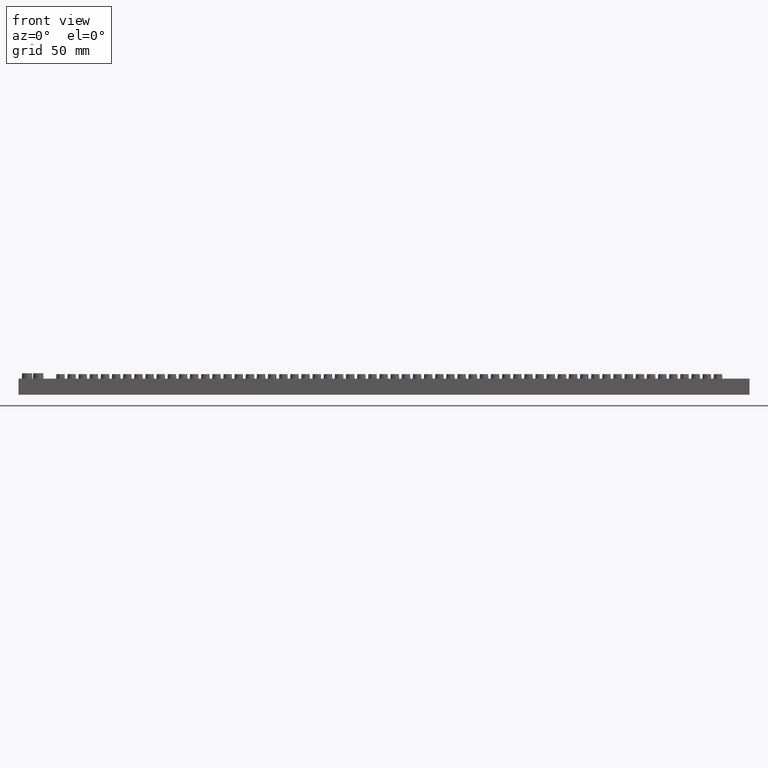
[diagram: clean part render]
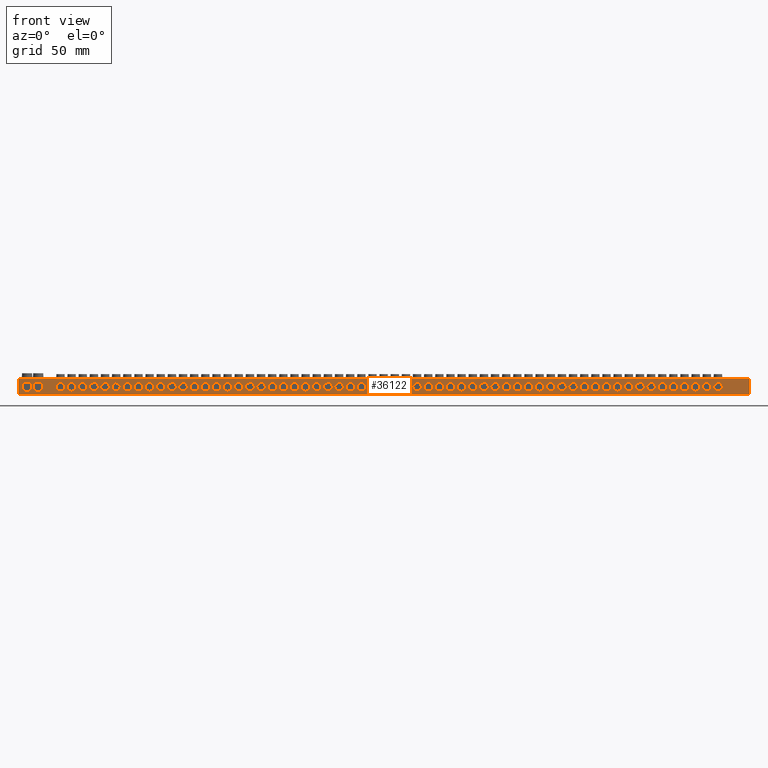
[diagram: same view with one face highlighted and labeled with its STEP entity id]
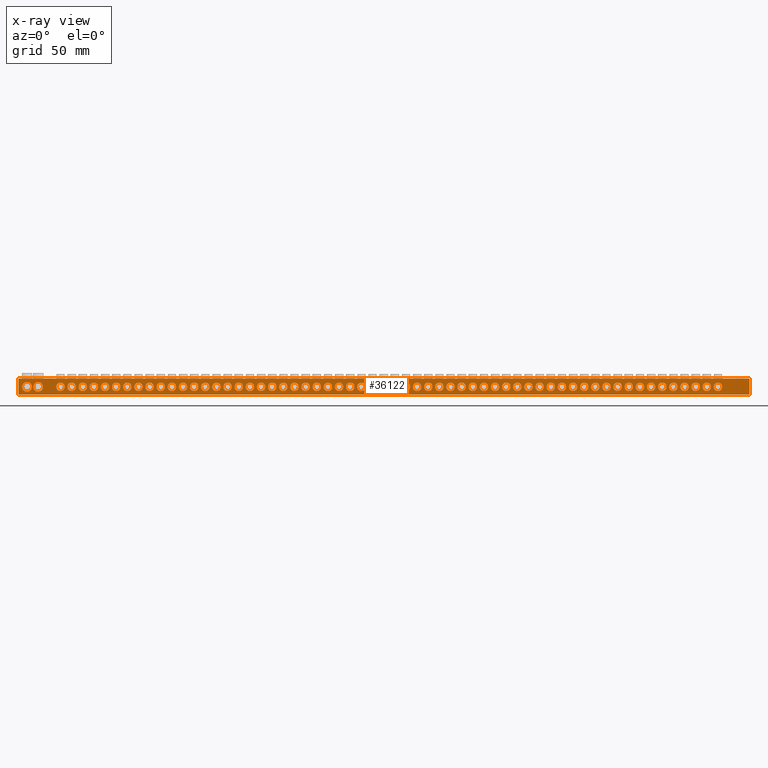
[diagram: x-ray of the same camera — body ghosted, the highlighted face saturated]
A machine part, front view. The second image highlights one B-rep face of the part: STEP entity #36122.
The next image is the same camera in x-ray: the body ghosted, the highlighted face saturated — about 0% of this face is hidden behind the body in this view.
In plain terms, the highlighted planar face has unit normal (0, 1, 0).
Its self-contained STEP definition (entity closure, byte-faithful):
#4850 = EDGE_LOOP ( 'NONE', ( #37171, #37190 ) ) ;
#4859 = EDGE_LOOP ( 'NONE', ( #37148, #37141 ) ) ;
#4861 = EDGE_LOOP ( 'NONE', ( #37090, #37169 ) ) ;
#4862 = EDGE_LOOP ( 'NONE', ( #37172, #37183 ) ) ;
#4863 = EDGE_LOOP ( 'NONE', ( #37155, #37153 ) ) ;
#4867 = EDGE_LOOP ( 'NONE', ( #37137, #37079 ) ) ;
#4868 = EDGE_LOOP ( 'NONE', ( #37129, #37099 ) ) ;
#4870 = EDGE_LOOP ( 'NONE', ( #37045, #37046 ) ) ;
#4872 = EDGE_LOOP ( 'NONE', ( #37140, #37125 ) ) ;
#4874 = EDGE_LOOP ( 'NONE', ( #37147, #37119 ) ) ;
#4875 = EDGE_LOOP ( 'NONE', ( #37050, #37048 ) ) ;
#4882 = EDGE_LOOP ( 'NONE', ( #37212, #37133 ) ) ;
#4884 = EDGE_LOOP ( 'NONE', ( #37085, #37134 ) ) ;
#4888 = EDGE_LOOP ( 'NONE', ( #37036, #37151 ) ) ;
#4889 = EDGE_LOOP ( 'NONE', ( #37106, #37139 ) ) ;
#4891 = EDGE_LOOP ( 'NONE', ( #37026, #37096 ) ) ;
#4894 = EDGE_LOOP ( 'NONE', ( #37095, #37098 ) ) ;
#4902 = EDGE_LOOP ( 'NONE', ( #37135, #37025 ) ) ;
#4903 = EDGE_LOOP ( 'NONE', ( #37064, #37052 ) ) ;
#4905 = EDGE_LOOP ( 'NONE', ( #37093, #37179, #37128, #37144 ) ) ;
#4906 = EDGE_LOOP ( 'NONE', ( #37142, #37031 ) ) ;
#4908 = EDGE_LOOP ( 'NONE', ( #37030, #37039 ) ) ;
#4909 = EDGE_LOOP ( 'NONE', ( #37115, #37070 ) ) ;
#4911 = EDGE_LOOP ( 'NONE', ( #37081, #37017 ) ) ;
#4913 = EDGE_LOOP ( 'NONE', ( #37057, #37075 ) ) ;
#4916 = EDGE_LOOP ( 'NONE', ( #36962, #36975 ) ) ;
#4917 = EDGE_LOOP ( 'NONE', ( #36978, #37015 ) ) ;
#4920 = EDGE_LOOP ( 'NONE', ( #37008, #37062 ) ) ;
#4921 = EDGE_LOOP ( 'NONE', ( #37047, #37082 ) ) ;
#4922 = EDGE_LOOP ( 'NONE', ( #37054, #37067 ) ) ;
#4927 = EDGE_LOOP ( 'NONE', ( #37056, #37084 ) ) ;
#4928 = EDGE_LOOP ( 'NONE', ( #37080, #37127 ) ) ;
#4931 = EDGE_LOOP ( 'NONE', ( #37041, #36992 ) ) ;
#4932 = EDGE_LOOP ( 'NONE', ( #37032, #37033 ) ) ;
#4935 = EDGE_LOOP ( 'NONE', ( #37145, #37083 ) ) ;
#4936 = EDGE_LOOP ( 'NONE', ( #37122, #37116 ) ) ;
#4937 = EDGE_LOOP ( 'NONE', ( #36969, #37019 ) ) ;
#4939 = EDGE_LOOP ( 'NONE', ( #37072, #37063 ) ) ;
#4940 = EDGE_LOOP ( 'NONE', ( #37107, #37044 ) ) ;
#4956 = EDGE_LOOP ( 'NONE', ( #37136, #37102 ) ) ;
#4961 = EDGE_LOOP ( 'NONE', ( #37035, #37060 ) ) ;
#4965 = EDGE_LOOP ( 'NONE', ( #37143, #37114 ) ) ;
#4967 = EDGE_LOOP ( 'NONE', ( #37073, #37117 ) ) ;
#4972 = EDGE_LOOP ( 'NONE', ( #37077, #37124 ) ) ;
#4973 = EDGE_LOOP ( 'NONE', ( #37051, #36973 ) ) ;
#4977 = EDGE_LOOP ( 'NONE', ( #37111, #37138 ) ) ;
#4980 = EDGE_LOOP ( 'NONE', ( #36972, #36968 ) ) ;
#4981 = EDGE_LOOP ( 'NONE', ( #37094, #37059 ) ) ;
#4982 = EDGE_LOOP ( 'NONE', ( #36974, #36976 ) ) ;
#4984 = EDGE_LOOP ( 'NONE', ( #37018, #37066 ) ) ;
#4985 = EDGE_LOOP ( 'NONE', ( #37028, #37069 ) ) ;
#4986 = EDGE_LOOP ( 'NONE', ( #36990, #36961 ) ) ;
#4988 = EDGE_LOOP ( 'NONE', ( #36997, #37027 ) ) ;
#4989 = EDGE_LOOP ( 'NONE', ( #37055, #37076 ) ) ;
#4991 = EDGE_LOOP ( 'NONE', ( #37061, #37089 ) ) ;
#4992 = EDGE_LOOP ( 'NONE', ( #37040, #37037 ) ) ;
#4993 = EDGE_LOOP ( 'NONE', ( #37086, #37108 ) ) ;
#4999 = EDGE_LOOP ( 'NONE', ( #37009, #37038 ) ) ;
#5004 = EDGE_LOOP ( 'NONE', ( #37121, #37112 ) ) ;
#5007 = EDGE_LOOP ( 'NONE', ( #37146, #37065 ) ) ;
#5013 = EDGE_LOOP ( 'NONE', ( #37118, #37049 ) ) ;
#5024 = EDGE_LOOP ( 'NONE', ( #37126, #37042 ) ) ;
#5029 = EDGE_LOOP ( 'NONE', ( #36985, #37043 ) ) ;
#5304 = VERTEX_POINT ( 'NONE', #25390 ) ;
#5313 = VERTEX_POINT ( 'NONE', #25432 ) ;
#5327 = VERTEX_POINT ( 'NONE', #25351 ) ;
#5335 = VERTEX_POINT ( 'NONE', #25460 ) ;
#7220 = FACE_BOUND ( 'NONE', #4903, .T. ) ;
#7221 = FACE_BOUND ( 'NONE', #4965, .T. ) ;
#7222 = FACE_BOUND ( 'NONE', #4920, .T. ) ;
#7224 = FACE_BOUND ( 'NONE', #5004, .T. ) ;
#7225 = FACE_BOUND ( 'NONE', #4961, .T. ) ;
#7226 = FACE_BOUND ( 'NONE', #4908, .T. ) ;
#7227 = FACE_BOUND ( 'NONE', #4991, .T. ) ;
#7228 = FACE_BOUND ( 'NONE', #4891, .T. ) ;
#7229 = FACE_BOUND ( 'NONE', #4999, .T. ) ;
#7230 = FACE_BOUND ( 'NONE', #4956, .T. ) ;
#7231 = FACE_BOUND ( 'NONE', #4977, .T. ) ;
#7232 = FACE_BOUND ( 'NONE', #4935, .T. ) ;
#7233 = FACE_BOUND ( 'NONE', #4884, .T. ) ;
#7234 = FACE_BOUND ( 'NONE', #4927, .T. ) ;
#7235 = FACE_BOUND ( 'NONE', #4911, .T. ) ;
#7237 = FACE_BOUND ( 'NONE', #4931, .T. ) ;
#7238 = FACE_BOUND ( 'NONE', #4981, .T. ) ;
#7239 = FACE_BOUND ( 'NONE', #5029, .T. ) ;
#7240 = FACE_BOUND ( 'NONE', #4973, .T. ) ;
#7241 = FACE_BOUND ( 'NONE', #5013, .T. ) ;
#7242 = FACE_BOUND ( 'NONE', #4972, .T. ) ;
#7244 = FACE_BOUND ( 'NONE', #4980, .T. ) ;
#7245 = FACE_BOUND ( 'NONE', #4921, .T. ) ;
#7247 = FACE_BOUND ( 'NONE', #4939, .T. ) ;
#7249 = FACE_BOUND ( 'NONE', #4967, .T. ) ;
#7251 = FACE_BOUND ( 'NONE', #4982, .T. ) ;
#7254 = FACE_BOUND ( 'NONE', #4988, .T. ) ;
#7255 = FACE_BOUND ( 'NONE', #5024, .T. ) ;
#7256 = FACE_BOUND ( 'NONE', #4922, .T. ) ;
#7257 = FACE_BOUND ( 'NONE', #4932, .T. ) ;
#7258 = FACE_BOUND ( 'NONE', #4916, .T. ) ;
#7259 = FACE_BOUND ( 'NONE', #4993, .T. ) ;
#7260 = FACE_BOUND ( 'NONE', #4906, .T. ) ;
#7261 = FACE_BOUND ( 'NONE', #4909, .T. ) ;
#7265 = FACE_BOUND ( 'NONE', #4989, .T. ) ;
#7267 = FACE_BOUND ( 'NONE', #4913, .T. ) ;
#7269 = FACE_BOUND ( 'NONE', #4984, .T. ) ;
#7270 = FACE_BOUND ( 'NONE', #4940, .T. ) ;
#7271 = FACE_BOUND ( 'NONE', #4902, .T. ) ;
#7272 = FACE_BOUND ( 'NONE', #4917, .T. ) ;
#7273 = FACE_BOUND ( 'NONE', #4985, .T. ) ;
#7274 = FACE_BOUND ( 'NONE', #4936, .T. ) ;
#7275 = FACE_BOUND ( 'NONE', #4928, .T. ) ;
#7276 = FACE_BOUND ( 'NONE', #4986, .T. ) ;
#7277 = FACE_BOUND ( 'NONE', #5007, .T. ) ;
#7279 = FACE_BOUND ( 'NONE', #4937, .T. ) ;
#7280 = FACE_BOUND ( 'NONE', #4874, .T. ) ;
#7281 = FACE_BOUND ( 'NONE', #4992, .T. ) ;
#7282 = FACE_BOUND ( 'NONE', #4862, .T. ) ;
#7284 = FACE_BOUND ( 'NONE', #4861, .T. ) ;
#7288 = CARTESIAN_POINT ( 'NONE',  ( 0.0000000000000000000, 0.0000000000000000000, 9.000000000000003600 ) ) ;
#7290 = FACE_BOUND ( 'NONE', #4888, .T. ) ;
#7295 = DIRECTION ( 'NONE',  ( 0.0000000000000000000, 1.000000000000000000, 0.0000000000000000000 ) ) ;
#7301 = FACE_BOUND ( 'NONE', #4859, .T. ) ;
#7302 = FACE_BOUND ( 'NONE', #4870, .T. ) ;
#7303 = FACE_BOUND ( 'NONE', #4868, .T. ) ;
#7304 = DIRECTION ( 'NONE',  ( 0.0000000000000000000, -0.0000000000000000000, 1.000000000000000000 ) ) ;
#7311 = FACE_BOUND ( 'NONE', #4875, .T. ) ;
#7314 = FACE_BOUND ( 'NONE', #4863, .T. ) ;
#7315 = FACE_BOUND ( 'NONE', #4882, .T. ) ;
#7318 = FACE_BOUND ( 'NONE', #4889, .T. ) ;
#7319 = FACE_BOUND ( 'NONE', #4894, .T. ) ;
#7321 = FACE_BOUND ( 'NONE', #4872, .T. ) ;
#7323 = PLANE ( 'NONE',  #34415 ) ;
#7330 = FACE_OUTER_BOUND ( 'NONE', #4905, .T. ) ;
#7331 = FACE_BOUND ( 'NONE', #4867, .T. ) ;
#7332 = FACE_BOUND ( 'NONE', #4850, .T. ) ;
#10021 = CARTESIAN_POINT ( 'NONE',  ( 99.00000000000106600, 0.0000000000000000000, 4.399999999999969300 ) ) ;
#10022 = CARTESIAN_POINT ( 'NONE',  ( 86.50000000000108000, 0.0000000000000000000, 4.399999999999968400 ) ) ;
#10024 = CARTESIAN_POINT ( 'NONE',  ( 55.25000000000118700, 0.0000000000000000000, 4.399999999999964800 ) ) ;
#10026 = DIRECTION ( 'NONE',  ( -0.0000000000000000000, -1.000000000000000000, -0.0000000000000000000 ) ) ;
#10028 = DIRECTION ( 'NONE',  ( -0.0000000000000000000, -1.000000000000000000, -0.0000000000000000000 ) ) ;
#10039 = CARTESIAN_POINT ( 'NONE',  ( 155.2500000000008200, 0.0000000000000000000, 4.399999999999977300 ) ) ;
#10044 = DIRECTION ( 'NONE',  ( 0.0000000000000000000, 0.0000000000000000000, -1.000000000000000000 ) ) ;
#10049 = DIRECTION ( 'NONE',  ( -0.0000000000000000000, -1.000000000000000000, -0.0000000000000000000 ) ) ;
#10054 = DIRECTION ( 'NONE',  ( -0.0000000000000000000, -1.000000000000000000, -0.0000000000000000000 ) ) ;
#10056 = DIRECTION ( 'NONE',  ( 0.0000000000000000000, 0.0000000000000000000, -1.000000000000000000 ) ) ;
#10057 = DIRECTION ( 'NONE',  ( 0.0000000000000000000, 0.0000000000000000000, -1.000000000000000000 ) ) ;
#10058 = DIRECTION ( 'NONE',  ( 0.0000000000000000000, 0.0000000000000000000, -1.000000000000000000 ) ) ;
#10066 = DIRECTION ( 'NONE',  ( 0.0000000000000000000, 0.0000000000000000000, -1.000000000000000000 ) ) ;
#10067 = CARTESIAN_POINT ( 'NONE',  ( 61.50000000000116500, 0.0000000000000000000, 4.399999999999965700 ) ) ;
#10070 = DIRECTION ( 'NONE',  ( -0.0000000000000000000, -1.000000000000000000, -0.0000000000000000000 ) ) ;
#10079 = DIRECTION ( 'NONE',  ( -0.0000000000000000000, -1.000000000000000000, -0.0000000000000000000 ) ) ;
#10080 = DIRECTION ( 'NONE',  ( 0.0000000000000000000, 0.0000000000000000000, -1.000000000000000000 ) ) ;
#10084 = CARTESIAN_POINT ( 'NONE',  ( 67.75000000000113700, 0.0000000000000000000, 4.399999999999966600 ) ) ;
#10094 = DIRECTION ( 'NONE',  ( -0.0000000000000000000, -1.000000000000000000, -0.0000000000000000000 ) ) ;
#10095 = DIRECTION ( 'NONE',  ( 0.0000000000000000000, 0.0000000000000000000, -1.000000000000000000 ) ) ;
#10096 = CARTESIAN_POINT ( 'NONE',  ( 30.25000000000127500, 0.0000000000000000000, 4.399999999999962200 ) ) ;
#10108 = CARTESIAN_POINT ( 'NONE',  ( 142.7500000000008800, 0.0000000000000000000, 4.399999999999973700 ) ) ;
#10112 = DIRECTION ( 'NONE',  ( 0.0000000000000000000, 0.0000000000000000000, -1.000000000000000000 ) ) ;
#10113 = CARTESIAN_POINT ( 'NONE',  ( 111.5000000000009800, 0.0000000000000000000, 4.399999999999971000 ) ) ;
#10115 = CARTESIAN_POINT ( 'NONE',  ( 161.5000000000008000, 0.0000000000000000000, 4.399999999999978200 ) ) ;
#10116 = DIRECTION ( 'NONE',  ( -0.0000000000000000000, -1.000000000000000000, -0.0000000000000000000 ) ) ;
#10118 = DIRECTION ( 'NONE',  ( 0.0000000000000000000, 0.0000000000000000000, -1.000000000000000000 ) ) ;
#10119 = DIRECTION ( 'NONE',  ( -0.0000000000000000000, -1.000000000000000000, -0.0000000000000000000 ) ) ;
#10121 = DIRECTION ( 'NONE',  ( 0.0000000000000000000, 0.0000000000000000000, -1.000000000000000000 ) ) ;
#10123 = DIRECTION ( 'NONE',  ( -0.0000000000000000000, -1.000000000000000000, -0.0000000000000000000 ) ) ;
#10124 = DIRECTION ( 'NONE',  ( 0.0000000000000000000, 0.0000000000000000000, -1.000000000000000000 ) ) ;
#10126 = DIRECTION ( 'NONE',  ( -0.0000000000000000000, -1.000000000000000000, -0.0000000000000000000 ) ) ;
#10130 = CARTESIAN_POINT ( 'NONE',  ( 180.2500000000007400, 0.0000000000000000000, 4.399999999999978200 ) ) ;
#10131 = DIRECTION ( 'NONE',  ( -0.0000000000000000000, -1.000000000000000000, -0.0000000000000000000 ) ) ;
#10132 = CARTESIAN_POINT ( 'NONE',  ( 42.75000000000122900, 0.0000000000000000000, 4.399999999999963900 ) ) ;
#10135 = CARTESIAN_POINT ( 'NONE',  ( 124.0000000000009400, 0.0000000000000000000, 4.399999999999971900 ) ) ;
#10139 = DIRECTION ( 'NONE',  ( 0.0000000000000000000, 0.0000000000000000000, -1.000000000000000000 ) ) ;
#10140 = DIRECTION ( 'NONE',  ( -0.0000000000000000000, -1.000000000000000000, -0.0000000000000000000 ) ) ;
#10147 = DIRECTION ( 'NONE',  ( 0.0000000000000000000, 0.0000000000000000000, -1.000000000000000000 ) ) ;
#10148 = DIRECTION ( 'NONE',  ( 0.0000000000000000000, 0.0000000000000000000, -1.000000000000000000 ) ) ;
#10149 = CARTESIAN_POINT ( 'NONE',  ( 280.2500000000004000, 0.0000000000000000000, 4.399999999999987900 ) ) ;
#10151 = DIRECTION ( 'NONE',  ( -0.0000000000000000000, -1.000000000000000000, -0.0000000000000000000 ) ) ;
#10154 = CARTESIAN_POINT ( 'NONE',  ( 242.7500000000005100, 0.0000000000000000000, 4.399999999999983500 ) ) ;
#10156 = CARTESIAN_POINT ( 'NONE',  ( 311.5000000000002800, 0.0000000000000000000, 4.399999999999990600 ) ) ;
#10157 = DIRECTION ( 'NONE',  ( 0.0000000000000000000, 0.0000000000000000000, -1.000000000000000000 ) ) ;
#10158 = DIRECTION ( 'NONE',  ( -0.0000000000000000000, -1.000000000000000000, -0.0000000000000000000 ) ) ;
#10164 = DIRECTION ( 'NONE',  ( 0.0000000000000000000, 0.0000000000000000000, -1.000000000000000000 ) ) ;
#10165 = DIRECTION ( 'NONE',  ( -0.0000000000000000000, -1.000000000000000000, -0.0000000000000000000 ) ) ;
#10168 = DIRECTION ( 'NONE',  ( -0.0000000000000000000, -1.000000000000000000, -0.0000000000000000000 ) ) ;
#10169 = CARTESIAN_POINT ( 'NONE',  ( 274.0000000000004000, 0.0000000000000000000, 4.399999999999987000 ) ) ;
#10171 = DIRECTION ( 'NONE',  ( -0.0000000000000000000, -1.000000000000000000, -0.0000000000000000000 ) ) ;
#10174 = CARTESIAN_POINT ( 'NONE',  ( 305.2500000000002800, 0.0000000000000000000, 4.399999999999990600 ) ) ;
#10180 = DIRECTION ( 'NONE',  ( -0.0000000000000000000, -1.000000000000000000, -0.0000000000000000000 ) ) ;
#10181 = DIRECTION ( 'NONE',  ( 0.0000000000000000000, 0.0000000000000000000, -1.000000000000000000 ) ) ;
#10183 = CARTESIAN_POINT ( 'NONE',  ( 80.25000000000109400, 0.0000000000000000000, 4.399999999999967500 ) ) ;
#10186 = DIRECTION ( 'NONE',  ( 0.0000000000000000000, 0.0000000000000000000, -1.000000000000000000 ) ) ;
#10187 = DIRECTION ( 'NONE',  ( 0.0000000000000000000, 0.0000000000000000000, -1.000000000000000000 ) ) ;
#10189 = CARTESIAN_POINT ( 'NONE',  ( 205.2500000000006500, 0.0000000000000000000, 4.399999999999979900 ) ) ;
#10190 = DIRECTION ( 'NONE',  ( 0.0000000000000000000, 0.0000000000000000000, -1.000000000000000000 ) ) ;
#10198 = CARTESIAN_POINT ( 'NONE',  ( 192.7500000000007700, 0.0000000000000000000, 4.399999999999978200 ) ) ;
#10201 = DIRECTION ( 'NONE',  ( 0.0000000000000000000, 0.0000000000000000000, -1.000000000000000000 ) ) ;
#10204 = CARTESIAN_POINT ( 'NONE',  ( 186.5000000000007100, 0.0000000000000000000, 4.399999999999978200 ) ) ;
#10205 = DIRECTION ( 'NONE',  ( 0.0000000000000000000, 0.0000000000000000000, -1.000000000000000000 ) ) ;
#10211 = DIRECTION ( 'NONE',  ( 0.0000000000000000000, 0.0000000000000000000, -1.000000000000000000 ) ) ;
#10213 = DIRECTION ( 'NONE',  ( 0.0000000000000000000, 0.0000000000000000000, -1.000000000000000000 ) ) ;
#10214 = CARTESIAN_POINT ( 'NONE',  ( 74.00000000000112300, 0.0000000000000000000, 4.399999999999966600 ) ) ;
#10215 = DIRECTION ( 'NONE',  ( -0.0000000000000000000, -1.000000000000000000, -0.0000000000000000000 ) ) ;
#10218 = DIRECTION ( 'NONE',  ( -0.0000000000000000000, -1.000000000000000000, -0.0000000000000000000 ) ) ;
#10221 = CARTESIAN_POINT ( 'NONE',  ( 174.0000000000007700, 0.0000000000000000000, 4.399999999999978200 ) ) ;
#10226 = DIRECTION ( 'NONE',  ( -0.0000000000000000000, -1.000000000000000000, -0.0000000000000000000 ) ) ;
#10228 = DIRECTION ( 'NONE',  ( -0.0000000000000000000, -1.000000000000000000, -0.0000000000000000000 ) ) ;
#10231 = DIRECTION ( 'NONE',  ( -0.0000000000000000000, -1.000000000000000000, -0.0000000000000000000 ) ) ;
#10237 = DIRECTION ( 'NONE',  ( 0.0000000000000000000, 0.0000000000000000000, -1.000000000000000000 ) ) ;
#10247 = CARTESIAN_POINT ( 'NONE',  ( 199.0000000000006800, 0.0000000000000000000, 4.399999999999979000 ) ) ;
#10252 = CARTESIAN_POINT ( 'NONE',  ( 217.7500000000006000, 0.0000000000000000000, 4.399999999999980800 ) ) ;
#10253 = DIRECTION ( 'NONE',  ( -0.0000000000000000000, -1.000000000000000000, -0.0000000000000000000 ) ) ;
#10256 = DIRECTION ( 'NONE',  ( -0.0000000000000000000, -1.000000000000000000, -0.0000000000000000000 ) ) ;
#10258 = CARTESIAN_POINT ( 'NONE',  ( 211.5000000000006300, 0.0000000000000000000, 4.399999999999980800 ) ) ;
#10259 = DIRECTION ( 'NONE',  ( 0.0000000000000000000, 0.0000000000000000000, -1.000000000000000000 ) ) ;
#10271 = DIRECTION ( 'NONE',  ( -0.0000000000000000000, -1.000000000000000000, -0.0000000000000000000 ) ) ;
#10272 = DIRECTION ( 'NONE',  ( 0.0000000000000000000, 0.0000000000000000000, -1.000000000000000000 ) ) ;
#10290 = DIRECTION ( 'NONE',  ( -0.0000000000000000000, -1.000000000000000000, -0.0000000000000000000 ) ) ;
#10305 = CARTESIAN_POINT ( 'NONE',  ( 167.7500000000008000, 0.0000000000000000000, 4.399999999999978200 ) ) ;
#10308 = DIRECTION ( 'NONE',  ( 0.0000000000000000000, 0.0000000000000000000, -1.000000000000000000 ) ) ;
#10317 = CARTESIAN_POINT ( 'NONE',  ( 292.7500000000003400, 0.0000000000000000000, 4.399999999999988800 ) ) ;
#10322 = DIRECTION ( 'NONE',  ( -0.0000000000000000000, -1.000000000000000000, -0.0000000000000000000 ) ) ;
#10324 = DIRECTION ( 'NONE',  ( 0.0000000000000000000, 0.0000000000000000000, -1.000000000000000000 ) ) ;
#10328 = DIRECTION ( 'NONE',  ( -0.0000000000000000000, -1.000000000000000000, -0.0000000000000000000 ) ) ;
#10335 = DIRECTION ( 'NONE',  ( 0.0000000000000000000, 0.0000000000000000000, -1.000000000000000000 ) ) ;
#10339 = CARTESIAN_POINT ( 'NONE',  ( 336.5000000000001700, 0.0000000000000000000, 4.399999999999993200 ) ) ;
#10340 = DIRECTION ( 'NONE',  ( -0.0000000000000000000, -1.000000000000000000, -0.0000000000000000000 ) ) ;
#10341 = CARTESIAN_POINT ( 'NONE',  ( 261.5000000000004500, 0.0000000000000000000, 4.399999999999985300 ) ) ;
#10342 = DIRECTION ( 'NONE',  ( 0.0000000000000000000, 0.0000000000000000000, -1.000000000000000000 ) ) ;
#10355 = CARTESIAN_POINT ( 'NONE',  ( 249.0000000000005700, 0.0000000000000000000, 4.399999999999984400 ) ) ;
#10357 = DIRECTION ( 'NONE',  ( -0.0000000000000000000, -1.000000000000000000, -0.0000000000000000000 ) ) ;
#10358 = DIRECTION ( 'NONE',  ( 0.0000000000000000000, 0.0000000000000000000, -1.000000000000000000 ) ) ;
#10369 = CARTESIAN_POINT ( 'NONE',  ( 267.7500000000005700, 0.0000000000000000000, 4.399999999999986100 ) ) ;
#10381 = DIRECTION ( 'NONE',  ( -0.0000000000000000000, -1.000000000000000000, -0.0000000000000000000 ) ) ;
#10384 = DIRECTION ( 'NONE',  ( 0.0000000000000000000, 0.0000000000000000000, -1.000000000000000000 ) ) ;
#10392 = DIRECTION ( 'NONE',  ( -0.0000000000000000000, -1.000000000000000000, -0.0000000000000000000 ) ) ;
#10397 = CARTESIAN_POINT ( 'NONE',  ( 236.5000000000005400, 0.0000000000000000000, 4.399999999999983500 ) ) ;
#10400 = DIRECTION ( 'NONE',  ( 0.0000000000000000000, 0.0000000000000000000, -1.000000000000000000 ) ) ;
#10401 = DIRECTION ( 'NONE',  ( -0.0000000000000000000, -1.000000000000000000, -0.0000000000000000000 ) ) ;
#10403 = CARTESIAN_POINT ( 'NONE',  ( 286.5000000000003400, 0.0000000000000000000, 4.399999999999987900 ) ) ;
#10406 = CARTESIAN_POINT ( 'NONE',  ( 230.2500000000005700, 0.0000000000000000000, 4.399999999999982600 ) ) ;
#10407 = DIRECTION ( 'NONE',  ( 0.0000000000000000000, 0.0000000000000000000, -1.000000000000000000 ) ) ;
#10417 = DIRECTION ( 'NONE',  ( 0.0000000000000000000, 0.0000000000000000000, -1.000000000000000000 ) ) ;
#10424 = DIRECTION ( 'NONE',  ( -0.0000000000000000000, -1.000000000000000000, -0.0000000000000000000 ) ) ;
#10425 = DIRECTION ( 'NONE',  ( -0.0000000000000000000, -1.000000000000000000, -0.0000000000000000000 ) ) ;
#10427 = CARTESIAN_POINT ( 'NONE',  ( 224.0000000000006500, 0.0000000000000000000, 4.399999999999981700 ) ) ;
#10435 = DIRECTION ( 'NONE',  ( -0.0000000000000000000, -1.000000000000000000, -0.0000000000000000000 ) ) ;
#10439 = DIRECTION ( 'NONE',  ( 0.0000000000000000000, 0.0000000000000000000, -1.000000000000000000 ) ) ;
#10440 = CARTESIAN_POINT ( 'NONE',  ( 299.0000000000003400, 0.0000000000000000000, 4.399999999999989700 ) ) ;
#10444 = DIRECTION ( 'NONE',  ( 0.0000000000000000000, 0.0000000000000000000, -1.000000000000000000 ) ) ;
#10463 = CARTESIAN_POINT ( 'NONE',  ( 317.7500000000002300, 0.0000000000000000000, 4.399999999999991500 ) ) ;
#10469 = DIRECTION ( 'NONE',  ( 0.0000000000000000000, 0.0000000000000000000, -1.000000000000000000 ) ) ;
#10486 = DIRECTION ( 'NONE',  ( -0.0000000000000000000, -1.000000000000000000, -0.0000000000000000000 ) ) ;
#10501 = DIRECTION ( 'NONE',  ( -0.0000000000000000000, -1.000000000000000000, -0.0000000000000000000 ) ) ;
#10503 = DIRECTION ( 'NONE',  ( 0.0000000000000000000, 0.0000000000000000000, -1.000000000000000000 ) ) ;
#10505 = DIRECTION ( 'NONE',  ( -0.0000000000000000000, -1.000000000000000000, -0.0000000000000000000 ) ) ;
#10519 = CARTESIAN_POINT ( 'NONE',  ( 5.250000000000000000, 0.0000000000000000000, 4.399999999999999500 ) ) ;
#10526 = CARTESIAN_POINT ( 'NONE',  ( 255.2500000000004800, 0.0000000000000000000, 4.399999999999985300 ) ) ;
#10531 = DIRECTION ( 'NONE',  ( 0.0000000000000000000, 0.0000000000000000000, -1.000000000000000000 ) ) ;
#10537 = CARTESIAN_POINT ( 'NONE',  ( 392.7500000000000000, 0.0000000000000000000, 4.399999999999999500 ) ) ;
#10538 = DIRECTION ( 'NONE',  ( -0.0000000000000000000, -1.000000000000000000, -0.0000000000000000000 ) ) ;
#10543 = CARTESIAN_POINT ( 'NONE',  ( 367.7500000000000600, 0.0000000000000000000, 4.399999999999996800 ) ) ;
#10544 = DIRECTION ( 'NONE',  ( -0.0000000000000000000, -1.000000000000000000, -0.0000000000000000000 ) ) ;
#10545 = DIRECTION ( 'NONE',  ( 0.0000000000000000000, 0.0000000000000000000, -1.000000000000000000 ) ) ;
#10549 = CARTESIAN_POINT ( 'NONE',  ( 330.2500000000002300, 0.0000000000000000000, 4.399999999999993200 ) ) ;
#10554 = DIRECTION ( 'NONE',  ( -0.0000000000000000000, -1.000000000000000000, -0.0000000000000000000 ) ) ;
#10555 = CARTESIAN_POINT ( 'NONE',  ( 374.0000000000000600, 0.0000000000000000000, 4.399999999999997700 ) ) ;
#10557 = DIRECTION ( 'NONE',  ( 0.0000000000000000000, 0.0000000000000000000, -1.000000000000000000 ) ) ;
#10565 = DIRECTION ( 'NONE',  ( 0.0000000000000000000, 0.0000000000000000000, -1.000000000000000000 ) ) ;
#10578 = CARTESIAN_POINT ( 'NONE',  ( 342.7500000000001700, 0.0000000000000000000, 4.399999999999994100 ) ) ;
#10582 = DIRECTION ( 'NONE',  ( -0.0000000000000000000, -1.000000000000000000, -0.0000000000000000000 ) ) ;
#10584 = CARTESIAN_POINT ( 'NONE',  ( 361.5000000000001100, 0.0000000000000000000, 4.399999999999995900 ) ) ;
#10590 = DIRECTION ( 'NONE',  ( 0.0000000000000000000, 0.0000000000000000000, -1.000000000000000000 ) ) ;
#10592 = DIRECTION ( 'NONE',  ( -0.0000000000000000000, -1.000000000000000000, -0.0000000000000000000 ) ) ;
#10596 = DIRECTION ( 'NONE',  ( -0.0000000000000000000, -1.000000000000000000, -0.0000000000000000000 ) ) ;
#10598 = DIRECTION ( 'NONE',  ( 0.0000000000000000000, 0.0000000000000000000, -1.000000000000000000 ) ) ;
#10601 = DIRECTION ( 'NONE',  ( -0.0000000000000000000, -1.000000000000000000, -0.0000000000000000000 ) ) ;
#10604 = DIRECTION ( 'NONE',  ( 0.0000000000000000000, 0.0000000000000000000, -1.000000000000000000 ) ) ;
#10605 = DIRECTION ( 'NONE',  ( 0.0000000000000000000, 0.0000000000000000000, -1.000000000000000000 ) ) ;
#10614 = CARTESIAN_POINT ( 'NONE',  ( 11.50000000000000000, 0.0000000000000000000, 4.399999999999999500 ) ) ;
#10631 = DIRECTION ( 'NONE',  ( -0.0000000000000000000, -1.000000000000000000, -0.0000000000000000000 ) ) ;
#10640 = CARTESIAN_POINT ( 'NONE',  ( 380.2500000000001700, 0.0000000000000000000, 4.399999999999998600 ) ) ;
#10644 = DIRECTION ( 'NONE',  ( 0.0000000000000000000, 0.0000000000000000000, -1.000000000000000000 ) ) ;
#10649 = DIRECTION ( 'NONE',  ( 0.0000000000000000000, 0.0000000000000000000, -1.000000000000000000 ) ) ;
#10654 = CARTESIAN_POINT ( 'NONE',  ( 355.2500000000001100, 0.0000000000000000000, 4.399999999999995900 ) ) ;
#10656 = DIRECTION ( 'NONE',  ( -0.0000000000000000000, -1.000000000000000000, -0.0000000000000000000 ) ) ;
#10662 = DIRECTION ( 'NONE',  ( 0.0000000000000000000, 0.0000000000000000000, -1.000000000000000000 ) ) ;
#10669 = CARTESIAN_POINT ( 'NONE',  ( 386.5000000000000000, 0.0000000000000000000, 4.399999999999998600 ) ) ;
#10670 = DIRECTION ( 'NONE',  ( -0.0000000000000000000, -1.000000000000000000, -0.0000000000000000000 ) ) ;
#10671 = DIRECTION ( 'NONE',  ( 0.0000000000000000000, 0.0000000000000000000, -1.000000000000000000 ) ) ;
#10680 = CARTESIAN_POINT ( 'NONE',  ( 324.0000000000002300, 0.0000000000000000000, 4.399999999999992400 ) ) ;
#10689 = DIRECTION ( 'NONE',  ( -0.0000000000000000000, -1.000000000000000000, -0.0000000000000000000 ) ) ;
#10695 = CARTESIAN_POINT ( 'NONE',  ( 349.0000000000002300, 0.0000000000000000000, 4.399999999999995000 ) ) ;
#10696 = DIRECTION ( 'NONE',  ( -0.0000000000000000000, -1.000000000000000000, -0.0000000000000000000 ) ) ;
#10697 = DIRECTION ( 'NONE',  ( 0.0000000000000000000, 0.0000000000000000000, -1.000000000000000000 ) ) ;
#13368 = CARTESIAN_POINT ( 'NONE',  ( 49.00000000000120800, 0.0000000000000000000, 4.399999999999963900 ) ) ;
#13378 = DIRECTION ( 'NONE',  ( -0.0000000000000000000, -1.000000000000000000, -0.0000000000000000000 ) ) ;
#13387 = DIRECTION ( 'NONE',  ( 0.0000000000000000000, 0.0000000000000000000, -1.000000000000000000 ) ) ;
#13422 = DIRECTION ( 'NONE',  ( -0.0000000000000000000, -1.000000000000000000, -0.0000000000000000000 ) ) ;
#13427 = DIRECTION ( 'NONE',  ( 0.0000000000000000000, 0.0000000000000000000, -1.000000000000000000 ) ) ;
#13428 = CARTESIAN_POINT ( 'NONE',  ( 24.00000000000129700, 0.0000000000000000000, 4.399999999999961300 ) ) ;
#13500 = DIRECTION ( 'NONE',  ( -0.0000000000000000000, -1.000000000000000000, -0.0000000000000000000 ) ) ;
#13504 = CARTESIAN_POINT ( 'NONE',  ( 36.50000000000125100, 0.0000000000000000000, 4.399999999999963100 ) ) ;
#13508 = DIRECTION ( 'NONE',  ( 0.0000000000000000000, 0.0000000000000000000, -1.000000000000000000 ) ) ;
#13517 = DIRECTION ( 'NONE',  ( -0.0000000000000000000, -1.000000000000000000, -0.0000000000000000000 ) ) ;
#13521 = DIRECTION ( 'NONE',  ( -0.0000000000000000000, -1.000000000000000000, -0.0000000000000000000 ) ) ;
#13545 = DIRECTION ( 'NONE',  ( 0.0000000000000000000, 0.0000000000000000000, -1.000000000000000000 ) ) ;
#13550 = CARTESIAN_POINT ( 'NONE',  ( 117.7500000000009700, 0.0000000000000000000, 4.399999999999971000 ) ) ;
#13558 = CARTESIAN_POINT ( 'NONE',  ( 92.75000000000105200, 0.0000000000000000000, 4.399999999999969300 ) ) ;
#13560 = CARTESIAN_POINT ( 'NONE',  ( 136.5000000000009700, 0.0000000000000000000, 4.399999999999973700 ) ) ;
#13561 = DIRECTION ( 'NONE',  ( -0.0000000000000000000, -1.000000000000000000, -0.0000000000000000000 ) ) ;
#13562 = CARTESIAN_POINT ( 'NONE',  ( 149.0000000000008500, 0.0000000000000000000, 4.399999999999976400 ) ) ;
#13564 = DIRECTION ( 'NONE',  ( -0.0000000000000000000, -1.000000000000000000, -0.0000000000000000000 ) ) ;
#13565 = DIRECTION ( 'NONE',  ( 0.0000000000000000000, 0.0000000000000000000, -1.000000000000000000 ) ) ;
#13566 = DIRECTION ( 'NONE',  ( 0.0000000000000000000, 0.0000000000000000000, -1.000000000000000000 ) ) ;
#13571 = CARTESIAN_POINT ( 'NONE',  ( 105.2500000000010100, 0.0000000000000000000, 4.399999999999970200 ) ) ;
#13572 = DIRECTION ( 'NONE',  ( -0.0000000000000000000, -1.000000000000000000, -0.0000000000000000000 ) ) ;
#13576 = DIRECTION ( 'NONE',  ( 0.0000000000000000000, 0.0000000000000000000, -1.000000000000000000 ) ) ;
#13588 = CARTESIAN_POINT ( 'NONE',  ( 130.2500000000009100, 0.0000000000000000000, 4.399999999999972800 ) ) ;
#13590 = DIRECTION ( 'NONE',  ( 0.0000000000000000000, 0.0000000000000000000, -1.000000000000000000 ) ) ;
#13591 = DIRECTION ( 'NONE',  ( -0.0000000000000000000, -1.000000000000000000, -0.0000000000000000000 ) ) ;
#13598 = DIRECTION ( 'NONE',  ( 0.0000000000000000000, 0.0000000000000000000, -1.000000000000000000 ) ) ;
#15792 = EDGE_CURVE ( 'NONE', #18794, #18784, #17679, .T. ) ;
#15793 = EDGE_CURVE ( 'NONE', #18714, #18720, #17631, .T. ) ;
#15795 = EDGE_CURVE ( 'NONE', #18653, #18635, #17640, .T. ) ;
#15804 = EDGE_CURVE ( 'NONE', #18659, #18737, #17680, .T. ) ;
#15808 = EDGE_CURVE ( 'NONE', #19606, #19609, #17635, .T. ) ;
#15843 = EDGE_CURVE ( 'NONE', #20870, #19619, #17720, .T. ) ;
#15845 = EDGE_CURVE ( 'NONE', #18748, #18747, #17729, .T. ) ;
#15846 = EDGE_CURVE ( 'NONE', #18689, #18690, #17696, .T. ) ;
#15847 = EDGE_CURVE ( 'NONE', #18656, #18640, #17700, .T. ) ;
#15852 = EDGE_CURVE ( 'NONE', #18752, #18675, #17771, .T. ) ;
#15853 = EDGE_CURVE ( 'NONE', #18679, #18673, #17749, .T. ) ;
#15854 = EDGE_CURVE ( 'NONE', #18712, #18686, #17750, .T. ) ;
#15856 = EDGE_CURVE ( 'NONE', #18654, #18623, #17764, .T. ) ;
#15857 = EDGE_CURVE ( 'NONE', #18599, #18608, #17756, .T. ) ;
#15859 = EDGE_CURVE ( 'NONE', #18715, #18777, #17754, .T. ) ;
#15860 = EDGE_CURVE ( 'NONE', #18672, #18691, #17766, .T. ) ;
#15861 = EDGE_CURVE ( 'NONE', #18677, #18716, #17753, .T. ) ;
#15862 = EDGE_CURVE ( 'NONE', #18607, #18567, #17793, .T. ) ;
#15863 = EDGE_CURVE ( 'NONE', #19601, #18568, #17772, .T. ) ;
#15864 = EDGE_CURVE ( 'NONE', #18645, #18625, #17782, .T. ) ;
#15865 = EDGE_CURVE ( 'NONE', #18614, #18571, #17748, .T. ) ;
#15866 = EDGE_CURVE ( 'NONE', #18631, #18616, #17795, .T. ) ;
#15869 = EDGE_CURVE ( 'NONE', #18678, #18775, #17794, .T. ) ;
#15870 = EDGE_CURVE ( 'NONE', #18638, #18562, #17770, .T. ) ;
#15873 = EDGE_CURVE ( 'NONE', #18581, #18564, #17786, .T. ) ;
#15875 = EDGE_CURVE ( 'NONE', #18657, #18681, #17769, .T. ) ;
#15876 = EDGE_CURVE ( 'NONE', #18688, #18682, #16679, .T. ) ;
#15878 = EDGE_CURVE ( 'NONE', #18593, #18595, #16675, .T. ) ;
#15879 = EDGE_CURVE ( 'NONE', #18627, #18671, #16677, .T. ) ;
#15880 = EDGE_CURVE ( 'NONE', #18629, #18636, #16711, .T. ) ;
#15881 = EDGE_CURVE ( 'NONE', #18594, #18553, #16708, .T. ) ;
#15882 = EDGE_CURVE ( 'NONE', #18620, #18708, #16650, .T. ) ;
#15883 = EDGE_CURVE ( 'NONE', #18597, #18598, #16648, .T. ) ;
#15884 = EDGE_CURVE ( 'NONE', #18806, #18758, #16674, .T. ) ;
#15885 = EDGE_CURVE ( 'NONE', #18668, #18717, #16680, .T. ) ;
#15886 = EDGE_CURVE ( 'NONE', #18736, #18753, #16681, .T. ) ;
#15888 = EDGE_CURVE ( 'NONE', #18763, #18781, #16661, .T. ) ;
#15889 = EDGE_CURVE ( 'NONE', #18556, #18583, #16685, .T. ) ;
#15890 = EDGE_CURVE ( 'NONE', #18566, #18641, #16684, .T. ) ;
#15891 = EDGE_CURVE ( 'NONE', #18697, #18710, #16651, .T. ) ;
#15892 = EDGE_CURVE ( 'NONE', #18570, #18696, #16667, .T. ) ;
#15893 = EDGE_CURVE ( 'NONE', #18687, #18701, #16692, .T. ) ;
#15894 = EDGE_CURVE ( 'NONE', #18612, #18610, #16695, .T. ) ;
#15895 = EDGE_CURVE ( 'NONE', #18628, #18650, #16688, .T. ) ;
#15896 = EDGE_CURVE ( 'NONE', #18600, #18602, #16653, .T. ) ;
#15899 = EDGE_CURVE ( 'NONE', #18586, #18561, #16710, .T. ) ;
#15901 = EDGE_CURVE ( 'NONE', #18578, #18596, #16656, .T. ) ;
#15902 = EDGE_CURVE ( 'NONE', #18551, #18563, #16690, .T. ) ;
#15903 = EDGE_CURVE ( 'NONE', #18613, #18615, #16655, .T. ) ;
#15905 = EDGE_CURVE ( 'NONE', #19645, #19649, #16660, .T. ) ;
#15906 = EDGE_CURVE ( 'NONE', #19622, #19595, #16670, .T. ) ;
#15907 = EDGE_CURVE ( 'NONE', #18700, #18718, #16774, .T. ) ;
#15910 = EDGE_CURVE ( 'NONE', #18757, #18719, #16722, .T. ) ;
#15911 = EDGE_CURVE ( 'NONE', #19597, #18573, #16720, .T. ) ;
#15913 = EDGE_CURVE ( 'NONE', #19600, #18584, #16744, .T. ) ;
#15914 = EDGE_CURVE ( 'NONE', #18760, #18768, #16742, .T. ) ;
#15915 = EDGE_CURVE ( 'NONE', #18601, #19621, #16756, .T. ) ;
#15917 = EDGE_CURVE ( 'NONE', #19623, #19608, #16717, .T. ) ;
#15918 = EDGE_CURVE ( 'NONE', #19604, #20861, #16752, .T. ) ;
#15921 = EDGE_CURVE ( 'NONE', #19644, #20860, #16751, .T. ) ;
#15922 = EDGE_CURVE ( 'NONE', #19627, #19603, #16739, .T. ) ;
#15934 = EDGE_CURVE ( 'NONE', #5304, #5335, #27121, .T. ) ;
#15947 = EDGE_CURVE ( 'NONE', #19641, #19650, #16794, .T. ) ;
#16002 = EDGE_CURVE ( 'NONE', #5313, #5327, #26364, .T. ) ;
#16023 = EDGE_CURVE ( 'NONE', #5335, #5313, #26402, .T. ) ;
#16036 = EDGE_CURVE ( 'NONE', #5304, #5327, #26458, .T. ) ;
#16648 = CIRCLE ( 'NONE', #16707, 2.400000000000031000 ) ;
#16650 = CIRCLE ( 'NONE', #16673, 2.400000000000031000 ) ;
#16651 = CIRCLE ( 'NONE', #16709, 2.399999999999970200 ) ;
#16652 = AXIS2_PLACEMENT_3D ( 'NONE', #31115, #31093, #31116 ) ;
#16653 = CIRCLE ( 'NONE', #16699, 2.400000000000031000 ) ;
#16655 = CIRCLE ( 'NONE', #16662, 2.400000000000028300 ) ;
#16656 = CIRCLE ( 'NONE', #16657, 2.400000000000031000 ) ;
#16657 = AXIS2_PLACEMENT_3D ( 'NONE', #31087, #31088, #31101 ) ;
#16659 = AXIS2_PLACEMENT_3D ( 'NONE', #31089, #31140, #31282 ) ;
#16660 = CIRCLE ( 'NONE', #16666, 2.400000000000029700 ) ;
#16661 = CIRCLE ( 'NONE', #16683, 2.400000000000028300 ) ;
#16662 = AXIS2_PLACEMENT_3D ( 'NONE', #31584, #30779, #30849 ) ;
#16663 = AXIS2_PLACEMENT_3D ( 'NONE', #31081, #31054, #31052 ) ;
#16666 = AXIS2_PLACEMENT_3D ( 'NONE', #27043, #27063, #27061 ) ;
#16667 = CIRCLE ( 'NONE', #16682, 2.400000000000028300 ) ;
#16668 = AXIS2_PLACEMENT_3D ( 'NONE', #31068, #31064, #31056 ) ;
#16669 = AXIS2_PLACEMENT_3D ( 'NONE', #31098, #31103, #31086 ) ;
#16670 = CIRCLE ( 'NONE', #16671, 2.400000000000029700 ) ;
#16671 = AXIS2_PLACEMENT_3D ( 'NONE', #27039, #27032, #27037 ) ;
#16673 = AXIS2_PLACEMENT_3D ( 'NONE', #31069, #31047, #31051 ) ;
#16674 = CIRCLE ( 'NONE', #16700, 2.749999999999998200 ) ;
#16675 = CIRCLE ( 'NONE', #16663, 2.400000000000031000 ) ;
#16677 = CIRCLE ( 'NONE', #16705, 2.400000000000031000 ) ;
#16679 = CIRCLE ( 'NONE', #16706, 2.400000000000028300 ) ;
#16680 = CIRCLE ( 'NONE', #16702, 2.400000000000028300 ) ;
#16681 = CIRCLE ( 'NONE', #16701, 2.749999999999999100 ) ;
#16682 = AXIS2_PLACEMENT_3D ( 'NONE', #31106, #31090, #31092 ) ;
#16683 = AXIS2_PLACEMENT_3D ( 'NONE', #31078, #31080, #31049 ) ;
#16684 = CIRCLE ( 'NONE', #16689, 2.400000000000031000 ) ;
#16685 = CIRCLE ( 'NONE', #16694, 2.400000000000029700 ) ;
#16687 = AXIS2_PLACEMENT_3D ( 'NONE', #31109, #31095, #31114 ) ;
#16688 = CIRCLE ( 'NONE', #16669, 2.400000000000031000 ) ;
#16689 = AXIS2_PLACEMENT_3D ( 'NONE', #31108, #31112, #31102 ) ;
#16690 = CIRCLE ( 'NONE', #16659, 2.400000000000029700 ) ;
#16692 = CIRCLE ( 'NONE', #16687, 2.400000000000086100 ) ;
#16693 = AXIS2_PLACEMENT_3D ( 'NONE', #31085, #31094, #31099 ) ;
#16694 = AXIS2_PLACEMENT_3D ( 'NONE', #31066, #31059, #31111 ) ;
#16695 = CIRCLE ( 'NONE', #16652, 2.400000000000031000 ) ;
#16697 = AXIS2_PLACEMENT_3D ( 'NONE', #31071, #31046, #31048 ) ;
#16699 = AXIS2_PLACEMENT_3D ( 'NONE', #31104, #31097, #31118 ) ;
#16700 = AXIS2_PLACEMENT_3D ( 'NONE', #31060, #31053, #31074 ) ;
#16701 = AXIS2_PLACEMENT_3D ( 'NONE', #31076, #31077, #31058 ) ;
#16702 = AXIS2_PLACEMENT_3D ( 'NONE', #31070, #31073, #31057 ) ;
#16705 = AXIS2_PLACEMENT_3D ( 'NONE', #31062, #31063, #31067 ) ;
#16706 = AXIS2_PLACEMENT_3D ( 'NONE', #31018, #31019, #31020 ) ;
#16707 = AXIS2_PLACEMENT_3D ( 'NONE', #31045, #31072, #31075 ) ;
#16708 = CIRCLE ( 'NONE', #16668, 2.400000000000029700 ) ;
#16709 = AXIS2_PLACEMENT_3D ( 'NONE', #31105, #31100, #31113 ) ;
#16710 = CIRCLE ( 'NONE', #16693, 2.400000000000029700 ) ;
#16711 = CIRCLE ( 'NONE', #16697, 2.400000000000031000 ) ;
#16714 = AXIS2_PLACEMENT_3D ( 'NONE', #27098, #27071, #27075 ) ;
#16717 = CIRCLE ( 'NONE', #16727, 2.400000000000029700 ) ;
#16720 = CIRCLE ( 'NONE', #16775, 2.400000000000031000 ) ;
#16722 = CIRCLE ( 'NONE', #16758, 2.400000000000028300 ) ;
#16727 = AXIS2_PLACEMENT_3D ( 'NONE', #27084, #27074, #27087 ) ;
#16729 = VECTOR ( 'NONE', #27143, 1000.000000000000000 ) ;
#16737 = AXIS2_PLACEMENT_3D ( 'NONE', #27060, #27049, #27050 ) ;
#16739 = CIRCLE ( 'NONE', #16762, 2.400000000000029700 ) ;
#16742 = CIRCLE ( 'NONE', #16766, 2.400000000000028300 ) ;
#16744 = CIRCLE ( 'NONE', #16759, 2.400000000000029700 ) ;
#16745 = AXIS2_PLACEMENT_3D ( 'NONE', #27066, #27089, #27090 ) ;
#16751 = CIRCLE ( 'NONE', #16714, 2.400000000000026100 ) ;
#16752 = CIRCLE ( 'NONE', #16745, 2.400000000000029700 ) ;
#16754 = AXIS2_PLACEMENT_3D ( 'NONE', #27040, #27034, #27044 ) ;
#16756 = CIRCLE ( 'NONE', #16737, 2.400000000000031000 ) ;
#16758 = AXIS2_PLACEMENT_3D ( 'NONE', #27045, #27033, #27029 ) ;
#16759 = AXIS2_PLACEMENT_3D ( 'NONE', #27054, #27035, #27048 ) ;
#16762 = AXIS2_PLACEMENT_3D ( 'NONE', #27102, #27100, #27067 ) ;
#16766 = AXIS2_PLACEMENT_3D ( 'NONE', #27056, #27057, #27058 ) ;
#16774 = CIRCLE ( 'NONE', #16754, 2.400000000000028300 ) ;
#16775 = AXIS2_PLACEMENT_3D ( 'NONE', #27036, #27059, #27053 ) ;
#16794 = CIRCLE ( 'NONE', #16795, 2.400000000000029700 ) ;
#16795 = AXIS2_PLACEMENT_3D ( 'NONE', #27165, #27175, #27181 ) ;
#16853 = VECTOR ( 'NONE', #26389, 1000.000000000000000 ) ;
#16867 = VECTOR ( 'NONE', #26343, 1000.000000000000000 ) ;
#16930 = VECTOR ( 'NONE', #26457, 1000.000000000000000 ) ;
#17631 = CIRCLE ( 'NONE', #17656, 2.399999999999970200 ) ;
#17635 = CIRCLE ( 'NONE', #17681, 2.400000000000029700 ) ;
#17640 = CIRCLE ( 'NONE', #17641, 2.400000000000031000 ) ;
#17641 = AXIS2_PLACEMENT_3D ( 'NONE', #30808, #30777, #30790 ) ;
#17643 = AXIS2_PLACEMENT_3D ( 'NONE', #30823, #30836, #30827 ) ;
#17647 = AXIS2_PLACEMENT_3D ( 'NONE', #30776, #30794, #30806 ) ;
#17656 = AXIS2_PLACEMENT_3D ( 'NONE', #30801, #30809, #30811 ) ;
#17679 = CIRCLE ( 'NONE', #17647, 2.400000000000028300 ) ;
#17680 = CIRCLE ( 'NONE', #17643, 2.400000000000028300 ) ;
#17681 = AXIS2_PLACEMENT_3D ( 'NONE', #30834, #30829, #30847 ) ;
#17696 = CIRCLE ( 'NONE', #17698, 2.400000000000028300 ) ;
#17698 = AXIS2_PLACEMENT_3D ( 'NONE', #30939, #30959, #30950 ) ;
#17700 = CIRCLE ( 'NONE', #17740, 2.400000000000031000 ) ;
#17717 = AXIS2_PLACEMENT_3D ( 'NONE', #30933, #30938, #30931 ) ;
#17720 = CIRCLE ( 'NONE', #17717, 2.400000000000029700 ) ;
#17729 = CIRCLE ( 'NONE', #17738, 2.400000000000028300 ) ;
#17738 = AXIS2_PLACEMENT_3D ( 'NONE', #30942, #30948, #30934 ) ;
#17740 = AXIS2_PLACEMENT_3D ( 'NONE', #30941, #30928, #30929 ) ;
#17748 = CIRCLE ( 'NONE', #17791, 2.400000000000031000 ) ;
#17749 = CIRCLE ( 'NONE', #17792, 2.400000000000028300 ) ;
#17750 = CIRCLE ( 'NONE', #17775, 2.400000000000028300 ) ;
#17751 = AXIS2_PLACEMENT_3D ( 'NONE', #31006, #31028, #31029 ) ;
#17753 = CIRCLE ( 'NONE', #17797, 2.400000000000028300 ) ;
#17754 = CIRCLE ( 'NONE', #17777, 2.400000000000028300 ) ;
#17756 = CIRCLE ( 'NONE', #17761, 2.400000000000029700 ) ;
#17761 = AXIS2_PLACEMENT_3D ( 'NONE', #30995, #30979, #30971 ) ;
#17764 = CIRCLE ( 'NONE', #17765, 2.400000000000031000 ) ;
#17765 = AXIS2_PLACEMENT_3D ( 'NONE', #30990, #30987, #30998 ) ;
#17766 = CIRCLE ( 'NONE', #17767, 2.400000000000028300 ) ;
#17767 = AXIS2_PLACEMENT_3D ( 'NONE', #30967, #30970, #30988 ) ;
#17768 = AXIS2_PLACEMENT_3D ( 'NONE', #31035, #31026, #31022 ) ;
#17769 = CIRCLE ( 'NONE', #17783, 2.400000000000086100 ) ;
#17770 = CIRCLE ( 'NONE', #17780, 2.400000000000031000 ) ;
#17771 = CIRCLE ( 'NONE', #17779, 2.400000000000028300 ) ;
#17772 = CIRCLE ( 'NONE', #17790, 2.400000000000031000 ) ;
#17775 = AXIS2_PLACEMENT_3D ( 'NONE', #30993, #30994, #30978 ) ;
#17776 = AXIS2_PLACEMENT_3D ( 'NONE', #31005, #31007, #31025 ) ;
#17777 = AXIS2_PLACEMENT_3D ( 'NONE', #30996, #30974, #30973 ) ;
#17779 = AXIS2_PLACEMENT_3D ( 'NONE', #30985, #31004, #30984 ) ;
#17780 = AXIS2_PLACEMENT_3D ( 'NONE', #31021, #31040, #31017 ) ;
#17782 = CIRCLE ( 'NONE', #17768, 2.400000000000028300 ) ;
#17783 = AXIS2_PLACEMENT_3D ( 'NONE', #31009, #31010, #31014 ) ;
#17784 = AXIS2_PLACEMENT_3D ( 'NONE', #31000, #31003, #31001 ) ;
#17785 = AXIS2_PLACEMENT_3D ( 'NONE', #31024, #31041, #31016 ) ;
#17786 = CIRCLE ( 'NONE', #17751, 2.400000000000029700 ) ;
#17790 = AXIS2_PLACEMENT_3D ( 'NONE', #30975, #30976, #30977 ) ;
#17791 = AXIS2_PLACEMENT_3D ( 'NONE', #31011, #31013, #31032 ) ;
#17792 = AXIS2_PLACEMENT_3D ( 'NONE', #30966, #30982, #30992 ) ;
#17793 = CIRCLE ( 'NONE', #17784, 2.400000000000031000 ) ;
#17794 = CIRCLE ( 'NONE', #17776, 2.399999999999970200 ) ;
#17795 = CIRCLE ( 'NONE', #17785, 2.400000000000031000 ) ;
#17797 = AXIS2_PLACEMENT_3D ( 'NONE', #30997, #30989, #30999 ) ;
#18551 = VERTEX_POINT ( 'NONE', #27462 ) ;
#18553 = VERTEX_POINT ( 'NONE', #27446 ) ;
#18556 = VERTEX_POINT ( 'NONE', #27439 ) ;
#18561 = VERTEX_POINT ( 'NONE', #27460 ) ;
#18562 = VERTEX_POINT ( 'NONE', #27436 ) ;
#18563 = VERTEX_POINT ( 'NONE', #27428 ) ;
#18564 = VERTEX_POINT ( 'NONE', #27463 ) ;
#18566 = VERTEX_POINT ( 'NONE', #27449 ) ;
#18567 = VERTEX_POINT ( 'NONE', #27457 ) ;
#18568 = VERTEX_POINT ( 'NONE', #27459 ) ;
#18570 = VERTEX_POINT ( 'NONE', #27429 ) ;
#18571 = VERTEX_POINT ( 'NONE', #27451 ) ;
#18573 = VERTEX_POINT ( 'NONE', #27461 ) ;
#18578 = VERTEX_POINT ( 'NONE', #27536 ) ;
#18581 = VERTEX_POINT ( 'NONE', #27494 ) ;
#18583 = VERTEX_POINT ( 'NONE', #27482 ) ;
#18584 = VERTEX_POINT ( 'NONE', #27511 ) ;
#18586 = VERTEX_POINT ( 'NONE', #27522 ) ;
#18593 = VERTEX_POINT ( 'NONE', #27523 ) ;
#18594 = VERTEX_POINT ( 'NONE', #27509 ) ;
#18595 = VERTEX_POINT ( 'NONE', #27488 ) ;
#18596 = VERTEX_POINT ( 'NONE', #27490 ) ;
#18597 = VERTEX_POINT ( 'NONE', #27524 ) ;
#18598 = VERTEX_POINT ( 'NONE', #27533 ) ;
#18599 = VERTEX_POINT ( 'NONE', #27513 ) ;
#18600 = VERTEX_POINT ( 'NONE', #27532 ) ;
#18601 = VERTEX_POINT ( 'NONE', #27486 ) ;
#18602 = VERTEX_POINT ( 'NONE', #27527 ) ;
#18607 = VERTEX_POINT ( 'NONE', #27479 ) ;
#18608 = VERTEX_POINT ( 'NONE', #27540 ) ;
#18610 = VERTEX_POINT ( 'NONE', #27505 ) ;
#18612 = VERTEX_POINT ( 'NONE', #27502 ) ;
#18613 = VERTEX_POINT ( 'NONE', #27517 ) ;
#18614 = VERTEX_POINT ( 'NONE', #27506 ) ;
#18615 = VERTEX_POINT ( 'NONE', #27477 ) ;
#18616 = VERTEX_POINT ( 'NONE', #27499 ) ;
#18620 = VERTEX_POINT ( 'NONE', #27528 ) ;
#18623 = VERTEX_POINT ( 'NONE', #27498 ) ;
#18625 = VERTEX_POINT ( 'NONE', #27531 ) ;
#18627 = VERTEX_POINT ( 'NONE', #27534 ) ;
#18628 = VERTEX_POINT ( 'NONE', #27487 ) ;
#18629 = VERTEX_POINT ( 'NONE', #27489 ) ;
#18631 = VERTEX_POINT ( 'NONE', #27507 ) ;
#18635 = VERTEX_POINT ( 'NONE', #27497 ) ;
#18636 = VERTEX_POINT ( 'NONE', #27500 ) ;
#18638 = VERTEX_POINT ( 'NONE', #27503 ) ;
#18640 = VERTEX_POINT ( 'NONE', #27559 ) ;
#18641 = VERTEX_POINT ( 'NONE', #27560 ) ;
#18645 = VERTEX_POINT ( 'NONE', #27550 ) ;
#18650 = VERTEX_POINT ( 'NONE', #27547 ) ;
#18653 = VERTEX_POINT ( 'NONE', #27541 ) ;
#18654 = VERTEX_POINT ( 'NONE', #27584 ) ;
#18656 = VERTEX_POINT ( 'NONE', #27593 ) ;
#18657 = VERTEX_POINT ( 'NONE', #27585 ) ;
#18659 = VERTEX_POINT ( 'NONE', #27581 ) ;
#18668 = VERTEX_POINT ( 'NONE', #27588 ) ;
#18671 = VERTEX_POINT ( 'NONE', #27577 ) ;
#18672 = VERTEX_POINT ( 'NONE', #27565 ) ;
#18673 = VERTEX_POINT ( 'NONE', #27566 ) ;
#18675 = VERTEX_POINT ( 'NONE', #27568 ) ;
#18677 = VERTEX_POINT ( 'NONE', #27551 ) ;
#18678 = VERTEX_POINT ( 'NONE', #27574 ) ;
#18679 = VERTEX_POINT ( 'NONE', #27583 ) ;
#18681 = VERTEX_POINT ( 'NONE', #27575 ) ;
#18682 = VERTEX_POINT ( 'NONE', #27549 ) ;
#18686 = VERTEX_POINT ( 'NONE', #27586 ) ;
#18687 = VERTEX_POINT ( 'NONE', #27557 ) ;
#18688 = VERTEX_POINT ( 'NONE', #27552 ) ;
#18689 = VERTEX_POINT ( 'NONE', #27589 ) ;
#18690 = VERTEX_POINT ( 'NONE', #27600 ) ;
#18691 = VERTEX_POINT ( 'NONE', #27591 ) ;
#18696 = VERTEX_POINT ( 'NONE', #27558 ) ;
#18697 = VERTEX_POINT ( 'NONE', #27597 ) ;
#18700 = VERTEX_POINT ( 'NONE', #27553 ) ;
#18701 = VERTEX_POINT ( 'NONE', #27602 ) ;
#18708 = VERTEX_POINT ( 'NONE', #27666 ) ;
#18710 = VERTEX_POINT ( 'NONE', #27657 ) ;
#18712 = VERTEX_POINT ( 'NONE', #27638 ) ;
#18714 = VERTEX_POINT ( 'NONE', #27637 ) ;
#18715 = VERTEX_POINT ( 'NONE', #27616 ) ;
#18716 = VERTEX_POINT ( 'NONE', #27618 ) ;
#18717 = VERTEX_POINT ( 'NONE', #27652 ) ;
#18718 = VERTEX_POINT ( 'NONE', #27661 ) ;
#18719 = VERTEX_POINT ( 'NONE', #27641 ) ;
#18720 = VERTEX_POINT ( 'NONE', #27660 ) ;
#18736 = VERTEX_POINT ( 'NONE', #27617 ) ;
#18737 = VERTEX_POINT ( 'NONE', #27624 ) ;
#18747 = VERTEX_POINT ( 'NONE', #27627 ) ;
#18748 = VERTEX_POINT ( 'NONE', #27634 ) ;
#18752 = VERTEX_POINT ( 'NONE', #27635 ) ;
#18753 = VERTEX_POINT ( 'NONE', #27621 ) ;
#18757 = VERTEX_POINT ( 'NONE', #27636 ) ;
#18758 = VERTEX_POINT ( 'NONE', #27665 ) ;
#18760 = VERTEX_POINT ( 'NONE', #27647 ) ;
#18763 = VERTEX_POINT ( 'NONE', #27605 ) ;
#18768 = VERTEX_POINT ( 'NONE', #27697 ) ;
#18775 = VERTEX_POINT ( 'NONE', #27688 ) ;
#18777 = VERTEX_POINT ( 'NONE', #27689 ) ;
#18781 = VERTEX_POINT ( 'NONE', #27710 ) ;
#18784 = VERTEX_POINT ( 'NONE', #27675 ) ;
#18794 = VERTEX_POINT ( 'NONE', #27700 ) ;
#18806 = VERTEX_POINT ( 'NONE', #27714 ) ;
#19595 = VERTEX_POINT ( 'NONE', #28201 ) ;
#19597 = VERTEX_POINT ( 'NONE', #28224 ) ;
#19600 = VERTEX_POINT ( 'NONE', #28233 ) ;
#19601 = VERTEX_POINT ( 'NONE', #28188 ) ;
#19603 = VERTEX_POINT ( 'NONE', #28234 ) ;
#19604 = VERTEX_POINT ( 'NONE', #28237 ) ;
#19606 = VERTEX_POINT ( 'NONE', #28183 ) ;
#19608 = VERTEX_POINT ( 'NONE', #28203 ) ;
#19609 = VERTEX_POINT ( 'NONE', #28205 ) ;
#19619 = VERTEX_POINT ( 'NONE', #28197 ) ;
#19621 = VERTEX_POINT ( 'NONE', #28207 ) ;
#19622 = VERTEX_POINT ( 'NONE', #28218 ) ;
#19623 = VERTEX_POINT ( 'NONE', #28281 ) ;
#19627 = VERTEX_POINT ( 'NONE', #28271 ) ;
#19641 = VERTEX_POINT ( 'NONE', #28263 ) ;
#19644 = VERTEX_POINT ( 'NONE', #28262 ) ;
#19645 = VERTEX_POINT ( 'NONE', #28270 ) ;
#19649 = VERTEX_POINT ( 'NONE', #28292 ) ;
#19650 = VERTEX_POINT ( 'NONE', #28249 ) ;
#20860 = VERTEX_POINT ( 'NONE', #23933 ) ;
#20861 = VERTEX_POINT ( 'NONE', #23936 ) ;
#20870 = VERTEX_POINT ( 'NONE', #24012 ) ;
#23933 = CARTESIAN_POINT ( 'NONE',  ( 24.00000000000129700, 0.0000000000000000000, 6.799999999999987400 ) ) ;
#23936 = CARTESIAN_POINT ( 'NONE',  ( 61.50000000000116500, 0.0000000000000000000, 6.799999999999995400 ) ) ;
#24012 = CARTESIAN_POINT ( 'NONE',  ( 67.75000000000113700, 0.0000000000000000000, 1.999999999999936700 ) ) ;
#25351 = CARTESIAN_POINT ( 'NONE',  ( 0.4500000000000000100, 0.0000000000000000000, 0.0000000000000000000 ) ) ;
#25390 = CARTESIAN_POINT ( 'NONE',  ( 0.4500000000000000100, 0.0000000000000000000, 9.000000000000003600 ) ) ;
#25432 = CARTESIAN_POINT ( 'NONE',  ( 410.4500000000000500, 0.0000000000000000000, 0.0000000000000000000 ) ) ;
#25460 = CARTESIAN_POINT ( 'NONE',  ( 410.4500000000000500, 0.0000000000000000000, 9.000000000000003600 ) ) ;
#26343 = DIRECTION ( 'NONE',  ( -1.000000000000000000, 0.0000000000000000000, -0.0000000000000000000 ) ) ;
#26364 = LINE ( 'NONE', #26365, #16867 ) ;
#26365 = CARTESIAN_POINT ( 'NONE',  ( 0.0000000000000000000, 0.0000000000000000000, 0.0000000000000000000 ) ) ;
#26389 = DIRECTION ( 'NONE',  ( 0.0000000000000000000, 0.0000000000000000000, -1.000000000000000000 ) ) ;
#26402 = LINE ( 'NONE', #26408, #16853 ) ;
#26408 = CARTESIAN_POINT ( 'NONE',  ( 410.4500000000000500, 0.0000000000000000000, 9.000000000000003600 ) ) ;
#26456 = CARTESIAN_POINT ( 'NONE',  ( 0.4500000000000000100, 0.0000000000000000000, 9.000000000000003600 ) ) ;
#26457 = DIRECTION ( 'NONE',  ( 0.0000000000000000000, 0.0000000000000000000, -1.000000000000000000 ) ) ;
#26458 = LINE ( 'NONE', #26456, #16930 ) ;
#27029 = DIRECTION ( 'NONE',  ( 0.0000000000000000000, 0.0000000000000000000, -1.000000000000000000 ) ) ;
#27032 = DIRECTION ( 'NONE',  ( -0.0000000000000000000, -1.000000000000000000, -0.0000000000000000000 ) ) ;
#27033 = DIRECTION ( 'NONE',  ( -0.0000000000000000000, -1.000000000000000000, -0.0000000000000000000 ) ) ;
#27034 = DIRECTION ( 'NONE',  ( -0.0000000000000000000, -1.000000000000000000, -0.0000000000000000000 ) ) ;
#27035 = DIRECTION ( 'NONE',  ( -0.0000000000000000000, -1.000000000000000000, -0.0000000000000000000 ) ) ;
#27036 = CARTESIAN_POINT ( 'NONE',  ( 155.2500000000008200, 0.0000000000000000000, 4.399999999999977300 ) ) ;
#27037 = DIRECTION ( 'NONE',  ( 0.0000000000000000000, 0.0000000000000000000, -1.000000000000000000 ) ) ;
#27039 = CARTESIAN_POINT ( 'NONE',  ( 55.25000000000118700, 0.0000000000000000000, 4.399999999999964800 ) ) ;
#27040 = CARTESIAN_POINT ( 'NONE',  ( 324.0000000000002300, 0.0000000000000000000, 4.399999999999992400 ) ) ;
#27043 = CARTESIAN_POINT ( 'NONE',  ( 30.25000000000127500, 0.0000000000000000000, 4.399999999999962200 ) ) ;
#27044 = DIRECTION ( 'NONE',  ( 0.0000000000000000000, 0.0000000000000000000, -1.000000000000000000 ) ) ;
#27045 = CARTESIAN_POINT ( 'NONE',  ( 311.5000000000002800, 0.0000000000000000000, 4.399999999999990600 ) ) ;
#27048 = DIRECTION ( 'NONE',  ( 0.0000000000000000000, 0.0000000000000000000, -1.000000000000000000 ) ) ;
#27049 = DIRECTION ( 'NONE',  ( -0.0000000000000000000, -1.000000000000000000, -0.0000000000000000000 ) ) ;
#27050 = DIRECTION ( 'NONE',  ( 0.0000000000000000000, 0.0000000000000000000, -1.000000000000000000 ) ) ;
#27053 = DIRECTION ( 'NONE',  ( 0.0000000000000000000, 0.0000000000000000000, -1.000000000000000000 ) ) ;
#27054 = CARTESIAN_POINT ( 'NONE',  ( 92.75000000000105200, 0.0000000000000000000, 4.399999999999969300 ) ) ;
#27056 = CARTESIAN_POINT ( 'NONE',  ( 386.5000000000000000, 0.0000000000000000000, 4.399999999999998600 ) ) ;
#27057 = DIRECTION ( 'NONE',  ( -0.0000000000000000000, -1.000000000000000000, -0.0000000000000000000 ) ) ;
#27058 = DIRECTION ( 'NONE',  ( 0.0000000000000000000, 0.0000000000000000000, -1.000000000000000000 ) ) ;
#27059 = DIRECTION ( 'NONE',  ( -0.0000000000000000000, -1.000000000000000000, -0.0000000000000000000 ) ) ;
#27060 = CARTESIAN_POINT ( 'NONE',  ( 149.0000000000008500, 0.0000000000000000000, 4.399999999999976400 ) ) ;
#27061 = DIRECTION ( 'NONE',  ( 0.0000000000000000000, 0.0000000000000000000, -1.000000000000000000 ) ) ;
#27063 = DIRECTION ( 'NONE',  ( -0.0000000000000000000, -1.000000000000000000, -0.0000000000000000000 ) ) ;
#27066 = CARTESIAN_POINT ( 'NONE',  ( 61.50000000000116500, 0.0000000000000000000, 4.399999999999965700 ) ) ;
#27067 = DIRECTION ( 'NONE',  ( 0.0000000000000000000, 0.0000000000000000000, -1.000000000000000000 ) ) ;
#27071 = DIRECTION ( 'NONE',  ( -0.0000000000000000000, -1.000000000000000000, -0.0000000000000000000 ) ) ;
#27074 = DIRECTION ( 'NONE',  ( -0.0000000000000000000, -1.000000000000000000, -0.0000000000000000000 ) ) ;
#27075 = DIRECTION ( 'NONE',  ( 0.0000000000000000000, 0.0000000000000000000, -1.000000000000000000 ) ) ;
#27084 = CARTESIAN_POINT ( 'NONE',  ( 49.00000000000120800, 0.0000000000000000000, 4.399999999999963900 ) ) ;
#27087 = DIRECTION ( 'NONE',  ( 0.0000000000000000000, 0.0000000000000000000, -1.000000000000000000 ) ) ;
#27089 = DIRECTION ( 'NONE',  ( -0.0000000000000000000, -1.000000000000000000, -0.0000000000000000000 ) ) ;
#27090 = DIRECTION ( 'NONE',  ( 0.0000000000000000000, 0.0000000000000000000, -1.000000000000000000 ) ) ;
#27098 = CARTESIAN_POINT ( 'NONE',  ( 24.00000000000129700, 0.0000000000000000000, 4.399999999999961300 ) ) ;
#27100 = DIRECTION ( 'NONE',  ( -0.0000000000000000000, -1.000000000000000000, -0.0000000000000000000 ) ) ;
#27102 = CARTESIAN_POINT ( 'NONE',  ( 36.50000000000125100, 0.0000000000000000000, 4.399999999999963100 ) ) ;
#27110 = CARTESIAN_POINT ( 'NONE',  ( 0.0000000000000000000, 0.0000000000000000000, 9.000000000000003600 ) ) ;
#27121 = LINE ( 'NONE', #27110, #16729 ) ;
#27143 = DIRECTION ( 'NONE',  ( 1.000000000000000000, -0.0000000000000000000, 0.0000000000000000000 ) ) ;
#27165 = CARTESIAN_POINT ( 'NONE',  ( 42.75000000000122900, 0.0000000000000000000, 4.399999999999963900 ) ) ;
#27175 = DIRECTION ( 'NONE',  ( -0.0000000000000000000, -1.000000000000000000, -0.0000000000000000000 ) ) ;
#27181 = DIRECTION ( 'NONE',  ( 0.0000000000000000000, 0.0000000000000000000, -1.000000000000000000 ) ) ;
#27428 = CARTESIAN_POINT ( 'NONE',  ( 80.25000000000109400, 0.0000000000000000000, 6.799999999999997200 ) ) ;
#27429 = CARTESIAN_POINT ( 'NONE',  ( 261.5000000000004500, 0.0000000000000000000, 1.999999999999957100 ) ) ;
#27436 = CARTESIAN_POINT ( 'NONE',  ( 211.5000000000006300, 0.0000000000000000000, 6.800000000000012300 ) ) ;
#27439 = CARTESIAN_POINT ( 'NONE',  ( 99.00000000000106600, 0.0000000000000000000, 1.999999999999939400 ) ) ;
#27446 = CARTESIAN_POINT ( 'NONE',  ( 86.50000000000108000, 0.0000000000000000000, 6.799999999999998000 ) ) ;
#27449 = CARTESIAN_POINT ( 'NONE',  ( 217.7500000000006000, 0.0000000000000000000, 1.999999999999950300 ) ) ;
#27451 = CARTESIAN_POINT ( 'NONE',  ( 205.2500000000006500, 0.0000000000000000000, 6.800000000000010500 ) ) ;
#27457 = CARTESIAN_POINT ( 'NONE',  ( 130.2500000000009100, 0.0000000000000000000, 6.800000000000004300 ) ) ;
#27459 = CARTESIAN_POINT ( 'NONE',  ( 174.0000000000007700, 0.0000000000000000000, 6.800000000000009600 ) ) ;
#27460 = CARTESIAN_POINT ( 'NONE',  ( 111.5000000000009800, 0.0000000000000000000, 6.800000000000000700 ) ) ;
#27461 = CARTESIAN_POINT ( 'NONE',  ( 155.2500000000008200, 0.0000000000000000000, 6.800000000000007800 ) ) ;
#27462 = CARTESIAN_POINT ( 'NONE',  ( 80.25000000000109400, 0.0000000000000000000, 1.999999999999937600 ) ) ;
#27463 = CARTESIAN_POINT ( 'NONE',  ( 117.7500000000009700, 0.0000000000000000000, 6.800000000000000700 ) ) ;
#27477 = CARTESIAN_POINT ( 'NONE',  ( 267.7500000000005700, 0.0000000000000000000, 6.800000000000014000 ) ) ;
#27479 = CARTESIAN_POINT ( 'NONE',  ( 130.2500000000009100, 0.0000000000000000000, 1.999999999999941600 ) ) ;
#27482 = CARTESIAN_POINT ( 'NONE',  ( 99.00000000000106600, 0.0000000000000000000, 6.799999999999998900 ) ) ;
#27486 = CARTESIAN_POINT ( 'NONE',  ( 149.0000000000008500, 0.0000000000000000000, 1.999999999999944900 ) ) ;
#27487 = CARTESIAN_POINT ( 'NONE',  ( 199.0000000000006800, 0.0000000000000000000, 1.999999999999948500 ) ) ;
#27488 = CARTESIAN_POINT ( 'NONE',  ( 136.5000000000009700, 0.0000000000000000000, 6.800000000000004300 ) ) ;
#27489 = CARTESIAN_POINT ( 'NONE',  ( 186.5000000000007100, 0.0000000000000000000, 1.999999999999947600 ) ) ;
#27490 = CARTESIAN_POINT ( 'NONE',  ( 161.5000000000008000, 0.0000000000000000000, 6.800000000000009600 ) ) ;
#27494 = CARTESIAN_POINT ( 'NONE',  ( 117.7500000000009700, 0.0000000000000000000, 1.999999999999941200 ) ) ;
#27497 = CARTESIAN_POINT ( 'NONE',  ( 236.5000000000005400, 0.0000000000000000000, 6.800000000000014000 ) ) ;
#27498 = CARTESIAN_POINT ( 'NONE',  ( 192.7500000000007700, 0.0000000000000000000, 6.800000000000009600 ) ) ;
#27499 = CARTESIAN_POINT ( 'NONE',  ( 180.2500000000007400, 0.0000000000000000000, 6.800000000000009600 ) ) ;
#27500 = CARTESIAN_POINT ( 'NONE',  ( 186.5000000000007100, 0.0000000000000000000, 6.800000000000009600 ) ) ;
#27502 = CARTESIAN_POINT ( 'NONE',  ( 142.7500000000008800, 0.0000000000000000000, 1.999999999999942300 ) ) ;
#27503 = CARTESIAN_POINT ( 'NONE',  ( 211.5000000000006300, 0.0000000000000000000, 1.999999999999950300 ) ) ;
#27505 = CARTESIAN_POINT ( 'NONE',  ( 142.7500000000008800, 0.0000000000000000000, 6.800000000000004300 ) ) ;
#27506 = CARTESIAN_POINT ( 'NONE',  ( 205.2500000000006500, 0.0000000000000000000, 1.999999999999949400 ) ) ;
#27507 = CARTESIAN_POINT ( 'NONE',  ( 180.2500000000007400, 0.0000000000000000000, 1.999999999999947600 ) ) ;
#27509 = CARTESIAN_POINT ( 'NONE',  ( 86.50000000000108000, 0.0000000000000000000, 1.999999999999938500 ) ) ;
#27511 = CARTESIAN_POINT ( 'NONE',  ( 92.75000000000105200, 0.0000000000000000000, 6.799999999999998900 ) ) ;
#27513 = CARTESIAN_POINT ( 'NONE',  ( 105.2500000000010100, 0.0000000000000000000, 1.999999999999940300 ) ) ;
#27517 = CARTESIAN_POINT ( 'NONE',  ( 267.7500000000005700, 0.0000000000000000000, 1.999999999999958000 ) ) ;
#27522 = CARTESIAN_POINT ( 'NONE',  ( 111.5000000000009800, 0.0000000000000000000, 1.999999999999941200 ) ) ;
#27523 = CARTESIAN_POINT ( 'NONE',  ( 136.5000000000009700, 0.0000000000000000000, 1.999999999999942300 ) ) ;
#27524 = CARTESIAN_POINT ( 'NONE',  ( 167.7500000000008000, 0.0000000000000000000, 1.999999999999946700 ) ) ;
#27527 = CARTESIAN_POINT ( 'NONE',  ( 124.0000000000009400, 0.0000000000000000000, 6.800000000000002500 ) ) ;
#27528 = CARTESIAN_POINT ( 'NONE',  ( 224.0000000000006500, 0.0000000000000000000, 1.999999999999950900 ) ) ;
#27531 = CARTESIAN_POINT ( 'NONE',  ( 274.0000000000004000, 0.0000000000000000000, 6.800000000000015800 ) ) ;
#27532 = CARTESIAN_POINT ( 'NONE',  ( 124.0000000000009400, 0.0000000000000000000, 1.999999999999940700 ) ) ;
#27533 = CARTESIAN_POINT ( 'NONE',  ( 167.7500000000008000, 0.0000000000000000000, 6.800000000000009600 ) ) ;
#27534 = CARTESIAN_POINT ( 'NONE',  ( 230.2500000000005700, 0.0000000000000000000, 1.999999999999951800 ) ) ;
#27536 = CARTESIAN_POINT ( 'NONE',  ( 161.5000000000008000, 0.0000000000000000000, 1.999999999999946700 ) ) ;
#27540 = CARTESIAN_POINT ( 'NONE',  ( 105.2500000000010100, 0.0000000000000000000, 6.799999999999999800 ) ) ;
#27541 = CARTESIAN_POINT ( 'NONE',  ( 236.5000000000005400, 0.0000000000000000000, 1.999999999999952700 ) ) ;
#27547 = CARTESIAN_POINT ( 'NONE',  ( 199.0000000000006800, 0.0000000000000000000, 6.800000000000010500 ) ) ;
#27549 = CARTESIAN_POINT ( 'NONE',  ( 305.2500000000002800, 0.0000000000000000000, 6.800000000000019400 ) ) ;
#27550 = CARTESIAN_POINT ( 'NONE',  ( 274.0000000000004000, 0.0000000000000000000, 1.999999999999958900 ) ) ;
#27551 = CARTESIAN_POINT ( 'NONE',  ( 249.0000000000005700, 0.0000000000000000000, 1.999999999999956300 ) ) ;
#27552 = CARTESIAN_POINT ( 'NONE',  ( 305.2500000000002800, 0.0000000000000000000, 1.999999999999962300 ) ) ;
#27553 = CARTESIAN_POINT ( 'NONE',  ( 324.0000000000002300, 0.0000000000000000000, 1.999999999999964000 ) ) ;
#27557 = CARTESIAN_POINT ( 'NONE',  ( 299.0000000000003400, 0.0000000000000000000, 1.999999999999903900 ) ) ;
#27558 = CARTESIAN_POINT ( 'NONE',  ( 261.5000000000004500, 0.0000000000000000000, 6.800000000000014000 ) ) ;
#27559 = CARTESIAN_POINT ( 'NONE',  ( 242.7500000000005100, 0.0000000000000000000, 6.800000000000014000 ) ) ;
#27560 = CARTESIAN_POINT ( 'NONE',  ( 217.7500000000006000, 0.0000000000000000000, 6.800000000000012300 ) ) ;
#27565 = CARTESIAN_POINT ( 'NONE',  ( 336.5000000000001700, 0.0000000000000000000, 1.999999999999964900 ) ) ;
#27566 = CARTESIAN_POINT ( 'NONE',  ( 361.5000000000001100, 0.0000000000000000000, 6.800000000000024700 ) ) ;
#27568 = CARTESIAN_POINT ( 'NONE',  ( 349.0000000000002300, 0.0000000000000000000, 6.800000000000022900 ) ) ;
#27574 = CARTESIAN_POINT ( 'NONE',  ( 342.7500000000001700, 0.0000000000000000000, 2.000000000000024000 ) ) ;
#27575 = CARTESIAN_POINT ( 'NONE',  ( 330.2500000000002300, 0.0000000000000000000, 6.800000000000079800 ) ) ;
#27577 = CARTESIAN_POINT ( 'NONE',  ( 230.2500000000005700, 0.0000000000000000000, 6.800000000000014000 ) ) ;
#27581 = CARTESIAN_POINT ( 'NONE',  ( 292.7500000000003400, 0.0000000000000000000, 1.999999999999960500 ) ) ;
#27583 = CARTESIAN_POINT ( 'NONE',  ( 361.5000000000001100, 0.0000000000000000000, 1.999999999999967600 ) ) ;
#27584 = CARTESIAN_POINT ( 'NONE',  ( 192.7500000000007700, 0.0000000000000000000, 1.999999999999947600 ) ) ;
#27585 = CARTESIAN_POINT ( 'NONE',  ( 330.2500000000002300, 0.0000000000000000000, 1.999999999999907200 ) ) ;
#27586 = CARTESIAN_POINT ( 'NONE',  ( 317.7500000000002300, 0.0000000000000000000, 6.800000000000019400 ) ) ;
#27588 = CARTESIAN_POINT ( 'NONE',  ( 355.2500000000001100, 0.0000000000000000000, 1.999999999999967600 ) ) ;
#27589 = CARTESIAN_POINT ( 'NONE',  ( 367.7500000000000600, 0.0000000000000000000, 1.999999999999968500 ) ) ;
#27591 = CARTESIAN_POINT ( 'NONE',  ( 336.5000000000001700, 0.0000000000000000000, 6.800000000000021100 ) ) ;
#27593 = CARTESIAN_POINT ( 'NONE',  ( 242.7500000000005100, 0.0000000000000000000, 1.999999999999952700 ) ) ;
#27597 = CARTESIAN_POINT ( 'NONE',  ( 286.5000000000003400, 0.0000000000000000000, 2.000000000000017800 ) ) ;
#27600 = CARTESIAN_POINT ( 'NONE',  ( 367.7500000000000600, 0.0000000000000000000, 6.800000000000024700 ) ) ;
#27602 = CARTESIAN_POINT ( 'NONE',  ( 299.0000000000003400, 0.0000000000000000000, 6.800000000000076200 ) ) ;
#27605 = CARTESIAN_POINT ( 'NONE',  ( 374.0000000000000600, 0.0000000000000000000, 1.999999999999969400 ) ) ;
#27616 = CARTESIAN_POINT ( 'NONE',  ( 280.2500000000004000, 0.0000000000000000000, 1.999999999999959800 ) ) ;
#27617 = CARTESIAN_POINT ( 'NONE',  ( 5.250000000000000000, 0.0000000000000000000, 1.650000000000000400 ) ) ;
#27618 = CARTESIAN_POINT ( 'NONE',  ( 249.0000000000005700, 0.0000000000000000000, 6.800000000000012300 ) ) ;
#27621 = CARTESIAN_POINT ( 'NONE',  ( 5.250000000000000000, 0.0000000000000000000, 7.149999999999998600 ) ) ;
#27624 = CARTESIAN_POINT ( 'NONE',  ( 292.7500000000003400, 0.0000000000000000000, 6.800000000000017600 ) ) ;
#27627 = CARTESIAN_POINT ( 'NONE',  ( 380.2500000000001700, 0.0000000000000000000, 6.800000000000026500 ) ) ;
#27634 = CARTESIAN_POINT ( 'NONE',  ( 380.2500000000001700, 0.0000000000000000000, 1.999999999999970000 ) ) ;
#27635 = CARTESIAN_POINT ( 'NONE',  ( 349.0000000000002300, 0.0000000000000000000, 1.999999999999966700 ) ) ;
#27636 = CARTESIAN_POINT ( 'NONE',  ( 311.5000000000002800, 0.0000000000000000000, 1.999999999999962300 ) ) ;
#27637 = CARTESIAN_POINT ( 'NONE',  ( 255.2500000000004800, 0.0000000000000000000, 2.000000000000015100 ) ) ;
#27638 = CARTESIAN_POINT ( 'NONE',  ( 317.7500000000002300, 0.0000000000000000000, 1.999999999999963100 ) ) ;
#27641 = CARTESIAN_POINT ( 'NONE',  ( 311.5000000000002800, 0.0000000000000000000, 6.800000000000019400 ) ) ;
#27647 = CARTESIAN_POINT ( 'NONE',  ( 386.5000000000000000, 0.0000000000000000000, 1.999999999999970000 ) ) ;
#27652 = CARTESIAN_POINT ( 'NONE',  ( 355.2500000000001100, 0.0000000000000000000, 6.800000000000024700 ) ) ;
#27657 = CARTESIAN_POINT ( 'NONE',  ( 286.5000000000003400, 0.0000000000000000000, 6.799999999999959000 ) ) ;
#27660 = CARTESIAN_POINT ( 'NONE',  ( 255.2500000000004800, 0.0000000000000000000, 6.799999999999955400 ) ) ;
#27661 = CARTESIAN_POINT ( 'NONE',  ( 324.0000000000002300, 0.0000000000000000000, 6.800000000000021100 ) ) ;
#27665 = CARTESIAN_POINT ( 'NONE',  ( 11.50000000000000000, 0.0000000000000000000, 7.149999999999997700 ) ) ;
#27666 = CARTESIAN_POINT ( 'NONE',  ( 224.0000000000006500, 0.0000000000000000000, 6.800000000000012300 ) ) ;
#27675 = CARTESIAN_POINT ( 'NONE',  ( 392.7500000000000000, 0.0000000000000000000, 6.800000000000028200 ) ) ;
#27688 = CARTESIAN_POINT ( 'NONE',  ( 342.7500000000001700, 0.0000000000000000000, 6.799999999999964300 ) ) ;
#27689 = CARTESIAN_POINT ( 'NONE',  ( 280.2500000000004000, 0.0000000000000000000, 6.800000000000015800 ) ) ;
#27697 = CARTESIAN_POINT ( 'NONE',  ( 386.5000000000000000, 0.0000000000000000000, 6.800000000000026500 ) ) ;
#27700 = CARTESIAN_POINT ( 'NONE',  ( 392.7500000000000000, 0.0000000000000000000, 1.999999999999970900 ) ) ;
#27710 = CARTESIAN_POINT ( 'NONE',  ( 374.0000000000000600, 0.0000000000000000000, 6.800000000000026500 ) ) ;
#27714 = CARTESIAN_POINT ( 'NONE',  ( 11.50000000000000000, 0.0000000000000000000, 1.650000000000001200 ) ) ;
#28183 = CARTESIAN_POINT ( 'NONE',  ( 74.00000000000112300, 0.0000000000000000000, 1.999999999999936700 ) ) ;
#28188 = CARTESIAN_POINT ( 'NONE',  ( 174.0000000000007700, 0.0000000000000000000, 1.999999999999947600 ) ) ;
#28197 = CARTESIAN_POINT ( 'NONE',  ( 67.75000000000113700, 0.0000000000000000000, 6.799999999999996300 ) ) ;
#28201 = CARTESIAN_POINT ( 'NONE',  ( 55.25000000000118700, 0.0000000000000000000, 6.799999999999994500 ) ) ;
#28203 = CARTESIAN_POINT ( 'NONE',  ( 49.00000000000120800, 0.0000000000000000000, 6.799999999999993600 ) ) ;
#28205 = CARTESIAN_POINT ( 'NONE',  ( 74.00000000000112300, 0.0000000000000000000, 6.799999999999996300 ) ) ;
#28207 = CARTESIAN_POINT ( 'NONE',  ( 149.0000000000008500, 0.0000000000000000000, 6.800000000000007800 ) ) ;
#28218 = CARTESIAN_POINT ( 'NONE',  ( 55.25000000000118700, 0.0000000000000000000, 1.999999999999934900 ) ) ;
#28224 = CARTESIAN_POINT ( 'NONE',  ( 155.2500000000008200, 0.0000000000000000000, 1.999999999999945800 ) ) ;
#28233 = CARTESIAN_POINT ( 'NONE',  ( 92.75000000000105200, 0.0000000000000000000, 1.999999999999939400 ) ) ;
#28234 = CARTESIAN_POINT ( 'NONE',  ( 36.50000000000125100, 0.0000000000000000000, 6.799999999999992700 ) ) ;
#28237 = CARTESIAN_POINT ( 'NONE',  ( 61.50000000000116500, 0.0000000000000000000, 1.999999999999935800 ) ) ;
#28249 = CARTESIAN_POINT ( 'NONE',  ( 42.75000000000122900, 0.0000000000000000000, 6.799999999999993600 ) ) ;
#28262 = CARTESIAN_POINT ( 'NONE',  ( 24.00000000000129700, 0.0000000000000000000, 1.999999999999934900 ) ) ;
#28263 = CARTESIAN_POINT ( 'NONE',  ( 42.75000000000122900, 0.0000000000000000000, 1.999999999999934100 ) ) ;
#28270 = CARTESIAN_POINT ( 'NONE',  ( 30.25000000000127500, 0.0000000000000000000, 1.999999999999932500 ) ) ;
#28271 = CARTESIAN_POINT ( 'NONE',  ( 36.50000000000125100, 0.0000000000000000000, 1.999999999999933200 ) ) ;
#28281 = CARTESIAN_POINT ( 'NONE',  ( 49.00000000000120800, 0.0000000000000000000, 1.999999999999934100 ) ) ;
#28292 = CARTESIAN_POINT ( 'NONE',  ( 30.25000000000127500, 0.0000000000000000000, 6.799999999999991800 ) ) ;
#30776 = CARTESIAN_POINT ( 'NONE',  ( 392.7500000000000000, 0.0000000000000000000, 4.399999999999999500 ) ) ;
#30777 = DIRECTION ( 'NONE',  ( -0.0000000000000000000, -1.000000000000000000, -0.0000000000000000000 ) ) ;
#30779 = DIRECTION ( 'NONE',  ( -0.0000000000000000000, -1.000000000000000000, -0.0000000000000000000 ) ) ;
#30790 = DIRECTION ( 'NONE',  ( 0.0000000000000000000, 0.0000000000000000000, -1.000000000000000000 ) ) ;
#30794 = DIRECTION ( 'NONE',  ( -0.0000000000000000000, -1.000000000000000000, -0.0000000000000000000 ) ) ;
#30801 = CARTESIAN_POINT ( 'NONE',  ( 255.2500000000004800, 0.0000000000000000000, 4.399999999999985300 ) ) ;
#30806 = DIRECTION ( 'NONE',  ( 0.0000000000000000000, 0.0000000000000000000, -1.000000000000000000 ) ) ;
#30808 = CARTESIAN_POINT ( 'NONE',  ( 236.5000000000005400, 0.0000000000000000000, 4.399999999999983500 ) ) ;
#30809 = DIRECTION ( 'NONE',  ( -0.0000000000000000000, -1.000000000000000000, -0.0000000000000000000 ) ) ;
#30811 = DIRECTION ( 'NONE',  ( 0.0000000000000000000, 0.0000000000000000000, -1.000000000000000000 ) ) ;
#30823 = CARTESIAN_POINT ( 'NONE',  ( 292.7500000000003400, 0.0000000000000000000, 4.399999999999988800 ) ) ;
#30827 = DIRECTION ( 'NONE',  ( 0.0000000000000000000, 0.0000000000000000000, -1.000000000000000000 ) ) ;
#30829 = DIRECTION ( 'NONE',  ( -0.0000000000000000000, -1.000000000000000000, -0.0000000000000000000 ) ) ;
#30834 = CARTESIAN_POINT ( 'NONE',  ( 74.00000000000112300, 0.0000000000000000000, 4.399999999999966600 ) ) ;
#30836 = DIRECTION ( 'NONE',  ( -0.0000000000000000000, -1.000000000000000000, -0.0000000000000000000 ) ) ;
#30847 = DIRECTION ( 'NONE',  ( 0.0000000000000000000, 0.0000000000000000000, -1.000000000000000000 ) ) ;
#30849 = DIRECTION ( 'NONE',  ( 0.0000000000000000000, 0.0000000000000000000, -1.000000000000000000 ) ) ;
#30928 = DIRECTION ( 'NONE',  ( -0.0000000000000000000, -1.000000000000000000, -0.0000000000000000000 ) ) ;
#30929 = DIRECTION ( 'NONE',  ( 0.0000000000000000000, 0.0000000000000000000, -1.000000000000000000 ) ) ;
#30931 = DIRECTION ( 'NONE',  ( 0.0000000000000000000, 0.0000000000000000000, -1.000000000000000000 ) ) ;
#30933 = CARTESIAN_POINT ( 'NONE',  ( 67.75000000000113700, 0.0000000000000000000, 4.399999999999966600 ) ) ;
#30934 = DIRECTION ( 'NONE',  ( 0.0000000000000000000, 0.0000000000000000000, -1.000000000000000000 ) ) ;
#30938 = DIRECTION ( 'NONE',  ( -0.0000000000000000000, -1.000000000000000000, -0.0000000000000000000 ) ) ;
#30939 = CARTESIAN_POINT ( 'NONE',  ( 367.7500000000000600, 0.0000000000000000000, 4.399999999999996800 ) ) ;
#30941 = CARTESIAN_POINT ( 'NONE',  ( 242.7500000000005100, 0.0000000000000000000, 4.399999999999983500 ) ) ;
#30942 = CARTESIAN_POINT ( 'NONE',  ( 380.2500000000001700, 0.0000000000000000000, 4.399999999999998600 ) ) ;
#30948 = DIRECTION ( 'NONE',  ( -0.0000000000000000000, -1.000000000000000000, -0.0000000000000000000 ) ) ;
#30950 = DIRECTION ( 'NONE',  ( 0.0000000000000000000, 0.0000000000000000000, -1.000000000000000000 ) ) ;
#30959 = DIRECTION ( 'NONE',  ( -0.0000000000000000000, -1.000000000000000000, -0.0000000000000000000 ) ) ;
#30966 = CARTESIAN_POINT ( 'NONE',  ( 361.5000000000001100, 0.0000000000000000000, 4.399999999999995900 ) ) ;
#30967 = CARTESIAN_POINT ( 'NONE',  ( 336.5000000000001700, 0.0000000000000000000, 4.399999999999993200 ) ) ;
#30970 = DIRECTION ( 'NONE',  ( -0.0000000000000000000, -1.000000000000000000, -0.0000000000000000000 ) ) ;
#30971 = DIRECTION ( 'NONE',  ( 0.0000000000000000000, 0.0000000000000000000, -1.000000000000000000 ) ) ;
#30973 = DIRECTION ( 'NONE',  ( 0.0000000000000000000, 0.0000000000000000000, -1.000000000000000000 ) ) ;
#30974 = DIRECTION ( 'NONE',  ( -0.0000000000000000000, -1.000000000000000000, -0.0000000000000000000 ) ) ;
#30975 = CARTESIAN_POINT ( 'NONE',  ( 174.0000000000007700, 0.0000000000000000000, 4.399999999999978200 ) ) ;
#30976 = DIRECTION ( 'NONE',  ( -0.0000000000000000000, -1.000000000000000000, -0.0000000000000000000 ) ) ;
#30977 = DIRECTION ( 'NONE',  ( 0.0000000000000000000, 0.0000000000000000000, -1.000000000000000000 ) ) ;
#30978 = DIRECTION ( 'NONE',  ( 0.0000000000000000000, 0.0000000000000000000, -1.000000000000000000 ) ) ;
#30979 = DIRECTION ( 'NONE',  ( -0.0000000000000000000, -1.000000000000000000, -0.0000000000000000000 ) ) ;
#30982 = DIRECTION ( 'NONE',  ( -0.0000000000000000000, -1.000000000000000000, -0.0000000000000000000 ) ) ;
#30984 = DIRECTION ( 'NONE',  ( 0.0000000000000000000, 0.0000000000000000000, -1.000000000000000000 ) ) ;
#30985 = CARTESIAN_POINT ( 'NONE',  ( 349.0000000000002300, 0.0000000000000000000, 4.399999999999995000 ) ) ;
#30987 = DIRECTION ( 'NONE',  ( -0.0000000000000000000, -1.000000000000000000, -0.0000000000000000000 ) ) ;
#30988 = DIRECTION ( 'NONE',  ( 0.0000000000000000000, 0.0000000000000000000, -1.000000000000000000 ) ) ;
#30989 = DIRECTION ( 'NONE',  ( -0.0000000000000000000, -1.000000000000000000, -0.0000000000000000000 ) ) ;
#30990 = CARTESIAN_POINT ( 'NONE',  ( 192.7500000000007700, 0.0000000000000000000, 4.399999999999978200 ) ) ;
#30992 = DIRECTION ( 'NONE',  ( 0.0000000000000000000, 0.0000000000000000000, -1.000000000000000000 ) ) ;
#30993 = CARTESIAN_POINT ( 'NONE',  ( 317.7500000000002300, 0.0000000000000000000, 4.399999999999991500 ) ) ;
#30994 = DIRECTION ( 'NONE',  ( -0.0000000000000000000, -1.000000000000000000, -0.0000000000000000000 ) ) ;
#30995 = CARTESIAN_POINT ( 'NONE',  ( 105.2500000000010100, 0.0000000000000000000, 4.399999999999970200 ) ) ;
#30996 = CARTESIAN_POINT ( 'NONE',  ( 280.2500000000004000, 0.0000000000000000000, 4.399999999999987900 ) ) ;
#30997 = CARTESIAN_POINT ( 'NONE',  ( 249.0000000000005700, 0.0000000000000000000, 4.399999999999984400 ) ) ;
#30998 = DIRECTION ( 'NONE',  ( 0.0000000000000000000, 0.0000000000000000000, -1.000000000000000000 ) ) ;
#30999 = DIRECTION ( 'NONE',  ( 0.0000000000000000000, 0.0000000000000000000, -1.000000000000000000 ) ) ;
#31000 = CARTESIAN_POINT ( 'NONE',  ( 130.2500000000009100, 0.0000000000000000000, 4.399999999999972800 ) ) ;
#31001 = DIRECTION ( 'NONE',  ( 0.0000000000000000000, 0.0000000000000000000, -1.000000000000000000 ) ) ;
#31003 = DIRECTION ( 'NONE',  ( -0.0000000000000000000, -1.000000000000000000, -0.0000000000000000000 ) ) ;
#31004 = DIRECTION ( 'NONE',  ( -0.0000000000000000000, -1.000000000000000000, -0.0000000000000000000 ) ) ;
#31005 = CARTESIAN_POINT ( 'NONE',  ( 342.7500000000001700, 0.0000000000000000000, 4.399999999999994100 ) ) ;
#31006 = CARTESIAN_POINT ( 'NONE',  ( 117.7500000000009700, 0.0000000000000000000, 4.399999999999971000 ) ) ;
#31007 = DIRECTION ( 'NONE',  ( -0.0000000000000000000, -1.000000000000000000, -0.0000000000000000000 ) ) ;
#31009 = CARTESIAN_POINT ( 'NONE',  ( 330.2500000000002300, 0.0000000000000000000, 4.399999999999993200 ) ) ;
#31010 = DIRECTION ( 'NONE',  ( -0.0000000000000000000, -1.000000000000000000, -0.0000000000000000000 ) ) ;
#31011 = CARTESIAN_POINT ( 'NONE',  ( 205.2500000000006500, 0.0000000000000000000, 4.399999999999979900 ) ) ;
#31013 = DIRECTION ( 'NONE',  ( -0.0000000000000000000, -1.000000000000000000, -0.0000000000000000000 ) ) ;
#31014 = DIRECTION ( 'NONE',  ( 0.0000000000000000000, 0.0000000000000000000, -1.000000000000000000 ) ) ;
#31016 = DIRECTION ( 'NONE',  ( 0.0000000000000000000, 0.0000000000000000000, -1.000000000000000000 ) ) ;
#31017 = DIRECTION ( 'NONE',  ( 0.0000000000000000000, 0.0000000000000000000, -1.000000000000000000 ) ) ;
#31018 = CARTESIAN_POINT ( 'NONE',  ( 305.2500000000002800, 0.0000000000000000000, 4.399999999999990600 ) ) ;
#31019 = DIRECTION ( 'NONE',  ( -0.0000000000000000000, -1.000000000000000000, -0.0000000000000000000 ) ) ;
#31020 = DIRECTION ( 'NONE',  ( 0.0000000000000000000, 0.0000000000000000000, -1.000000000000000000 ) ) ;
#31021 = CARTESIAN_POINT ( 'NONE',  ( 211.5000000000006300, 0.0000000000000000000, 4.399999999999980800 ) ) ;
#31022 = DIRECTION ( 'NONE',  ( 0.0000000000000000000, 0.0000000000000000000, -1.000000000000000000 ) ) ;
#31024 = CARTESIAN_POINT ( 'NONE',  ( 180.2500000000007400, 0.0000000000000000000, 4.399999999999978200 ) ) ;
#31025 = DIRECTION ( 'NONE',  ( 0.0000000000000000000, 0.0000000000000000000, -1.000000000000000000 ) ) ;
#31026 = DIRECTION ( 'NONE',  ( -0.0000000000000000000, -1.000000000000000000, -0.0000000000000000000 ) ) ;
#31028 = DIRECTION ( 'NONE',  ( -0.0000000000000000000, -1.000000000000000000, -0.0000000000000000000 ) ) ;
#31029 = DIRECTION ( 'NONE',  ( 0.0000000000000000000, 0.0000000000000000000, -1.000000000000000000 ) ) ;
#31032 = DIRECTION ( 'NONE',  ( 0.0000000000000000000, 0.0000000000000000000, -1.000000000000000000 ) ) ;
#31035 = CARTESIAN_POINT ( 'NONE',  ( 274.0000000000004000, 0.0000000000000000000, 4.399999999999987000 ) ) ;
#31040 = DIRECTION ( 'NONE',  ( -0.0000000000000000000, -1.000000000000000000, -0.0000000000000000000 ) ) ;
#31041 = DIRECTION ( 'NONE',  ( -0.0000000000000000000, -1.000000000000000000, -0.0000000000000000000 ) ) ;
#31045 = CARTESIAN_POINT ( 'NONE',  ( 167.7500000000008000, 0.0000000000000000000, 4.399999999999978200 ) ) ;
#31046 = DIRECTION ( 'NONE',  ( -0.0000000000000000000, -1.000000000000000000, -0.0000000000000000000 ) ) ;
#31047 = DIRECTION ( 'NONE',  ( -0.0000000000000000000, -1.000000000000000000, -0.0000000000000000000 ) ) ;
#31048 = DIRECTION ( 'NONE',  ( 0.0000000000000000000, 0.0000000000000000000, -1.000000000000000000 ) ) ;
#31049 = DIRECTION ( 'NONE',  ( 0.0000000000000000000, 0.0000000000000000000, -1.000000000000000000 ) ) ;
#31051 = DIRECTION ( 'NONE',  ( 0.0000000000000000000, 0.0000000000000000000, -1.000000000000000000 ) ) ;
#31052 = DIRECTION ( 'NONE',  ( 0.0000000000000000000, 0.0000000000000000000, -1.000000000000000000 ) ) ;
#31053 = DIRECTION ( 'NONE',  ( -0.0000000000000000000, -1.000000000000000000, -0.0000000000000000000 ) ) ;
#31054 = DIRECTION ( 'NONE',  ( -0.0000000000000000000, -1.000000000000000000, -0.0000000000000000000 ) ) ;
#31056 = DIRECTION ( 'NONE',  ( 0.0000000000000000000, 0.0000000000000000000, -1.000000000000000000 ) ) ;
#31057 = DIRECTION ( 'NONE',  ( 0.0000000000000000000, 0.0000000000000000000, -1.000000000000000000 ) ) ;
#31058 = DIRECTION ( 'NONE',  ( 0.0000000000000000000, 0.0000000000000000000, -1.000000000000000000 ) ) ;
#31059 = DIRECTION ( 'NONE',  ( -0.0000000000000000000, -1.000000000000000000, -0.0000000000000000000 ) ) ;
#31060 = CARTESIAN_POINT ( 'NONE',  ( 11.50000000000000000, 0.0000000000000000000, 4.399999999999999500 ) ) ;
#31062 = CARTESIAN_POINT ( 'NONE',  ( 230.2500000000005700, 0.0000000000000000000, 4.399999999999982600 ) ) ;
#31063 = DIRECTION ( 'NONE',  ( -0.0000000000000000000, -1.000000000000000000, -0.0000000000000000000 ) ) ;
#31064 = DIRECTION ( 'NONE',  ( -0.0000000000000000000, -1.000000000000000000, -0.0000000000000000000 ) ) ;
#31066 = CARTESIAN_POINT ( 'NONE',  ( 99.00000000000106600, 0.0000000000000000000, 4.399999999999969300 ) ) ;
#31067 = DIRECTION ( 'NONE',  ( 0.0000000000000000000, 0.0000000000000000000, -1.000000000000000000 ) ) ;
#31068 = CARTESIAN_POINT ( 'NONE',  ( 86.50000000000108000, 0.0000000000000000000, 4.399999999999968400 ) ) ;
#31069 = CARTESIAN_POINT ( 'NONE',  ( 224.0000000000006500, 0.0000000000000000000, 4.399999999999981700 ) ) ;
#31070 = CARTESIAN_POINT ( 'NONE',  ( 355.2500000000001100, 0.0000000000000000000, 4.399999999999995900 ) ) ;
#31071 = CARTESIAN_POINT ( 'NONE',  ( 186.5000000000007100, 0.0000000000000000000, 4.399999999999978200 ) ) ;
#31072 = DIRECTION ( 'NONE',  ( -0.0000000000000000000, -1.000000000000000000, -0.0000000000000000000 ) ) ;
#31073 = DIRECTION ( 'NONE',  ( -0.0000000000000000000, -1.000000000000000000, -0.0000000000000000000 ) ) ;
#31074 = DIRECTION ( 'NONE',  ( 0.0000000000000000000, 0.0000000000000000000, -1.000000000000000000 ) ) ;
#31075 = DIRECTION ( 'NONE',  ( 0.0000000000000000000, 0.0000000000000000000, -1.000000000000000000 ) ) ;
#31076 = CARTESIAN_POINT ( 'NONE',  ( 5.250000000000000000, 0.0000000000000000000, 4.399999999999999500 ) ) ;
#31077 = DIRECTION ( 'NONE',  ( -0.0000000000000000000, -1.000000000000000000, -0.0000000000000000000 ) ) ;
#31078 = CARTESIAN_POINT ( 'NONE',  ( 374.0000000000000600, 0.0000000000000000000, 4.399999999999997700 ) ) ;
#31080 = DIRECTION ( 'NONE',  ( -0.0000000000000000000, -1.000000000000000000, -0.0000000000000000000 ) ) ;
#31081 = CARTESIAN_POINT ( 'NONE',  ( 136.5000000000009700, 0.0000000000000000000, 4.399999999999973700 ) ) ;
#31085 = CARTESIAN_POINT ( 'NONE',  ( 111.5000000000009800, 0.0000000000000000000, 4.399999999999971000 ) ) ;
#31086 = DIRECTION ( 'NONE',  ( 0.0000000000000000000, 0.0000000000000000000, -1.000000000000000000 ) ) ;
#31087 = CARTESIAN_POINT ( 'NONE',  ( 161.5000000000008000, 0.0000000000000000000, 4.399999999999978200 ) ) ;
#31088 = DIRECTION ( 'NONE',  ( -0.0000000000000000000, -1.000000000000000000, -0.0000000000000000000 ) ) ;
#31089 = CARTESIAN_POINT ( 'NONE',  ( 80.25000000000109400, 0.0000000000000000000, 4.399999999999967500 ) ) ;
#31090 = DIRECTION ( 'NONE',  ( -0.0000000000000000000, -1.000000000000000000, -0.0000000000000000000 ) ) ;
#31092 = DIRECTION ( 'NONE',  ( 0.0000000000000000000, 0.0000000000000000000, -1.000000000000000000 ) ) ;
#31093 = DIRECTION ( 'NONE',  ( -0.0000000000000000000, -1.000000000000000000, -0.0000000000000000000 ) ) ;
#31094 = DIRECTION ( 'NONE',  ( -0.0000000000000000000, -1.000000000000000000, -0.0000000000000000000 ) ) ;
#31095 = DIRECTION ( 'NONE',  ( -0.0000000000000000000, -1.000000000000000000, -0.0000000000000000000 ) ) ;
#31097 = DIRECTION ( 'NONE',  ( -0.0000000000000000000, -1.000000000000000000, -0.0000000000000000000 ) ) ;
#31098 = CARTESIAN_POINT ( 'NONE',  ( 199.0000000000006800, 0.0000000000000000000, 4.399999999999979000 ) ) ;
#31099 = DIRECTION ( 'NONE',  ( 0.0000000000000000000, 0.0000000000000000000, -1.000000000000000000 ) ) ;
#31100 = DIRECTION ( 'NONE',  ( -0.0000000000000000000, -1.000000000000000000, -0.0000000000000000000 ) ) ;
#31101 = DIRECTION ( 'NONE',  ( 0.0000000000000000000, 0.0000000000000000000, -1.000000000000000000 ) ) ;
#31102 = DIRECTION ( 'NONE',  ( 0.0000000000000000000, 0.0000000000000000000, -1.000000000000000000 ) ) ;
#31103 = DIRECTION ( 'NONE',  ( -0.0000000000000000000, -1.000000000000000000, -0.0000000000000000000 ) ) ;
#31104 = CARTESIAN_POINT ( 'NONE',  ( 124.0000000000009400, 0.0000000000000000000, 4.399999999999971900 ) ) ;
#31105 = CARTESIAN_POINT ( 'NONE',  ( 286.5000000000003400, 0.0000000000000000000, 4.399999999999987900 ) ) ;
#31106 = CARTESIAN_POINT ( 'NONE',  ( 261.5000000000004500, 0.0000000000000000000, 4.399999999999985300 ) ) ;
#31108 = CARTESIAN_POINT ( 'NONE',  ( 217.7500000000006000, 0.0000000000000000000, 4.399999999999980800 ) ) ;
#31109 = CARTESIAN_POINT ( 'NONE',  ( 299.0000000000003400, 0.0000000000000000000, 4.399999999999989700 ) ) ;
#31111 = DIRECTION ( 'NONE',  ( 0.0000000000000000000, 0.0000000000000000000, -1.000000000000000000 ) ) ;
#31112 = DIRECTION ( 'NONE',  ( -0.0000000000000000000, -1.000000000000000000, -0.0000000000000000000 ) ) ;
#31113 = DIRECTION ( 'NONE',  ( 0.0000000000000000000, 0.0000000000000000000, -1.000000000000000000 ) ) ;
#31114 = DIRECTION ( 'NONE',  ( 0.0000000000000000000, 0.0000000000000000000, -1.000000000000000000 ) ) ;
#31115 = CARTESIAN_POINT ( 'NONE',  ( 142.7500000000008800, 0.0000000000000000000, 4.399999999999973700 ) ) ;
#31116 = DIRECTION ( 'NONE',  ( 0.0000000000000000000, 0.0000000000000000000, -1.000000000000000000 ) ) ;
#31118 = DIRECTION ( 'NONE',  ( 0.0000000000000000000, 0.0000000000000000000, -1.000000000000000000 ) ) ;
#31140 = DIRECTION ( 'NONE',  ( -0.0000000000000000000, -1.000000000000000000, -0.0000000000000000000 ) ) ;
#31282 = DIRECTION ( 'NONE',  ( 0.0000000000000000000, 0.0000000000000000000, -1.000000000000000000 ) ) ;
#31584 = CARTESIAN_POINT ( 'NONE',  ( 267.7500000000005700, 0.0000000000000000000, 4.399999999999986100 ) ) ;
#31671 = CIRCLE ( 'NONE', #31769, 2.400000000000029700 ) ;
#31769 = AXIS2_PLACEMENT_3D ( 'NONE', #13504, #13500, #13508 ) ;
#32982 = CIRCLE ( 'NONE', #33007, 2.400000000000029700 ) ;
#32989 = CIRCLE ( 'NONE', #32999, 2.400000000000026100 ) ;
#32999 = AXIS2_PLACEMENT_3D ( 'NONE', #13428, #13422, #13427 ) ;
#33007 = AXIS2_PLACEMENT_3D ( 'NONE', #13368, #13378, #13387 ) ;
#33179 = CIRCLE ( 'NONE', #33304, 2.400000000000029700 ) ;
#33181 = CIRCLE ( 'NONE', #33309, 2.400000000000029700 ) ;
#33185 = CIRCLE ( 'NONE', #33274, 2.400000000000031000 ) ;
#33194 = AXIS2_PLACEMENT_3D ( 'NONE', #10108, #10131, #10139 ) ;
#33196 = CIRCLE ( 'NONE', #33313, 2.400000000000029700 ) ;
#33200 = CIRCLE ( 'NONE', #33202, 2.400000000000029700 ) ;
#33202 = AXIS2_PLACEMENT_3D ( 'NONE', #10132, #10140, #10112 ) ;
#33207 = CIRCLE ( 'NONE', #33209, 2.400000000000031000 ) ;
#33209 = AXIS2_PLACEMENT_3D ( 'NONE', #10135, #10119, #10124 ) ;
#33211 = AXIS2_PLACEMENT_3D ( 'NONE', #10021, #10026, #10044 ) ;
#33228 = CIRCLE ( 'NONE', #33298, 2.400000000000029700 ) ;
#33231 = CIRCLE ( 'NONE', #33237, 2.400000000000029700 ) ;
#33233 = CIRCLE ( 'NONE', #33211, 2.400000000000029700 ) ;
#33237 = AXIS2_PLACEMENT_3D ( 'NONE', #10024, #10049, #10058 ) ;
#33239 = CIRCLE ( 'NONE', #33291, 2.400000000000031000 ) ;
#33259 = AXIS2_PLACEMENT_3D ( 'NONE', #10084, #10070, #10066 ) ;
#33272 = CIRCLE ( 'NONE', #33194, 2.400000000000031000 ) ;
#33274 = AXIS2_PLACEMENT_3D ( 'NONE', #13562, #13564, #13566 ) ;
#33287 = CIRCLE ( 'NONE', #33259, 2.400000000000029700 ) ;
#33291 = AXIS2_PLACEMENT_3D ( 'NONE', #10039, #10028, #10057 ) ;
#33298 = AXIS2_PLACEMENT_3D ( 'NONE', #10096, #10079, #10080 ) ;
#33304 = AXIS2_PLACEMENT_3D ( 'NONE', #10022, #10054, #10056 ) ;
#33309 = AXIS2_PLACEMENT_3D ( 'NONE', #10067, #10094, #10095 ) ;
#33313 = AXIS2_PLACEMENT_3D ( 'NONE', #10113, #10126, #10121 ) ;
#33317 = AXIS2_PLACEMENT_3D ( 'NONE', #10174, #10151, #10181 ) ;
#33324 = AXIS2_PLACEMENT_3D ( 'NONE', #10130, #10123, #10147 ) ;
#33332 = AXIS2_PLACEMENT_3D ( 'NONE', #10221, #10215, #10201 ) ;
#33337 = CIRCLE ( 'NONE', #33376, 2.400000000000028300 ) ;
#33343 = AXIS2_PLACEMENT_3D ( 'NONE', #10258, #10256, #10237 ) ;
#33356 = CIRCLE ( 'NONE', #33343, 2.400000000000031000 ) ;
#33361 = CIRCLE ( 'NONE', #33452, 2.400000000000031000 ) ;
#33363 = CIRCLE ( 'NONE', #33406, 2.400000000000031000 ) ;
#33367 = CIRCLE ( 'NONE', #33317, 2.400000000000028300 ) ;
#33369 = CIRCLE ( 'NONE', #33371, 2.400000000000028300 ) ;
#33371 = AXIS2_PLACEMENT_3D ( 'NONE', #10149, #10171, #10164 ) ;
#33376 = AXIS2_PLACEMENT_3D ( 'NONE', #10156, #10158, #10148 ) ;
#33378 = CIRCLE ( 'NONE', #33332, 2.400000000000031000 ) ;
#33389 = CIRCLE ( 'NONE', #33410, 2.400000000000029700 ) ;
#33393 = CIRCLE ( 'NONE', #33447, 2.400000000000029700 ) ;
#33395 = CIRCLE ( 'NONE', #33402, 2.400000000000031000 ) ;
#33402 = AXIS2_PLACEMENT_3D ( 'NONE', #10198, #10228, #10211 ) ;
#33404 = CIRCLE ( 'NONE', #33434, 2.400000000000031000 ) ;
#33406 = AXIS2_PLACEMENT_3D ( 'NONE', #10115, #10116, #10118 ) ;
#33410 = AXIS2_PLACEMENT_3D ( 'NONE', #10214, #10231, #10213 ) ;
#33413 = CIRCLE ( 'NONE', #33421, 2.400000000000031000 ) ;
#33417 = CIRCLE ( 'NONE', #33419, 2.400000000000028300 ) ;
#33419 = AXIS2_PLACEMENT_3D ( 'NONE', #10169, #10180, #10186 ) ;
#33421 = AXIS2_PLACEMENT_3D ( 'NONE', #10189, #10218, #10190 ) ;
#33428 = CIRCLE ( 'NONE', #33439, 2.400000000000031000 ) ;
#33434 = AXIS2_PLACEMENT_3D ( 'NONE', #10154, #10165, #10157 ) ;
#33439 = AXIS2_PLACEMENT_3D ( 'NONE', #10204, #10226, #10205 ) ;
#33441 = CIRCLE ( 'NONE', #33324, 2.400000000000031000 ) ;
#33447 = AXIS2_PLACEMENT_3D ( 'NONE', #10183, #10168, #10187 ) ;
#33452 = AXIS2_PLACEMENT_3D ( 'NONE', #10247, #10253, #10259 ) ;
#33462 = CIRCLE ( 'NONE', #33592, 2.400000000000028300 ) ;
#33469 = AXIS2_PLACEMENT_3D ( 'NONE', #10252, #10271, #10272 ) ;
#33473 = CIRCLE ( 'NONE', #33527, 2.400000000000028300 ) ;
#33508 = AXIS2_PLACEMENT_3D ( 'NONE', #10341, #10340, #10342 ) ;
#33510 = CIRCLE ( 'NONE', #33514, 2.400000000000028300 ) ;
#33514 = AXIS2_PLACEMENT_3D ( 'NONE', #10339, #10328, #10358 ) ;
#33527 = AXIS2_PLACEMENT_3D ( 'NONE', #10317, #10322, #10324 ) ;
#33538 = AXIS2_PLACEMENT_3D ( 'NONE', #10305, #10290, #10308 ) ;
#33551 = CIRCLE ( 'NONE', #33538, 2.400000000000031000 ) ;
#33553 = CIRCLE ( 'NONE', #33469, 2.400000000000031000 ) ;
#33579 = CIRCLE ( 'NONE', #33508, 2.400000000000028300 ) ;
#33592 = AXIS2_PLACEMENT_3D ( 'NONE', #10355, #10357, #10335 ) ;
#33603 = CIRCLE ( 'NONE', #33700, 2.400000000000031000 ) ;
#33605 = CIRCLE ( 'NONE', #33610, 2.399999999999970200 ) ;
#33610 = AXIS2_PLACEMENT_3D ( 'NONE', #10403, #10424, #10439 ) ;
#33614 = CIRCLE ( 'NONE', #33627, 2.400000000000086100 ) ;
#33623 = CIRCLE ( 'NONE', #33717, 2.400000000000028300 ) ;
#33627 = AXIS2_PLACEMENT_3D ( 'NONE', #10440, #10425, #10444 ) ;
#33649 = CIRCLE ( 'NONE', #33651, 2.399999999999970200 ) ;
#33651 = AXIS2_PLACEMENT_3D ( 'NONE', #10526, #10505, #10503 ) ;
#33677 = CIRCLE ( 'NONE', #33691, 2.400000000000028300 ) ;
#33681 = CIRCLE ( 'NONE', #33721, 2.400000000000031000 ) ;
#33691 = AXIS2_PLACEMENT_3D ( 'NONE', #10369, #10392, #10384 ) ;
#33698 = CIRCLE ( 'NONE', #33711, 2.400000000000031000 ) ;
#33700 = AXIS2_PLACEMENT_3D ( 'NONE', #10427, #10435, #10417 ) ;
#33711 = AXIS2_PLACEMENT_3D ( 'NONE', #10406, #10401, #10407 ) ;
#33717 = AXIS2_PLACEMENT_3D ( 'NONE', #10463, #10486, #10469 ) ;
#33721 = AXIS2_PLACEMENT_3D ( 'NONE', #10397, #10381, #10400 ) ;
#33734 = CIRCLE ( 'NONE', #33737, 2.400000000000028300 ) ;
#33737 = AXIS2_PLACEMENT_3D ( 'NONE', #10654, #10631, #10649 ) ;
#33739 = CIRCLE ( 'NONE', #33881, 2.400000000000028300 ) ;
#33750 = CIRCLE ( 'NONE', #33843, 2.400000000000028300 ) ;
#33756 = CIRCLE ( 'NONE', #33769, 2.749999999999999100 ) ;
#33769 = AXIS2_PLACEMENT_3D ( 'NONE', #10519, #10501, #10531 ) ;
#33784 = CIRCLE ( 'NONE', #33834, 2.400000000000028300 ) ;
#33786 = CIRCLE ( 'NONE', #33791, 2.399999999999970200 ) ;
#33791 = AXIS2_PLACEMENT_3D ( 'NONE', #10578, #10601, #10590 ) ;
#33804 = AXIS2_PLACEMENT_3D ( 'NONE', #10549, #10544, #10545 ) ;
#33806 = AXIS2_PLACEMENT_3D ( 'NONE', #10537, #10538, #10565 ) ;
#33811 = CIRCLE ( 'NONE', #33832, 2.400000000000028300 ) ;
#33822 = CIRCLE ( 'NONE', #33806, 2.400000000000028300 ) ;
#33828 = CIRCLE ( 'NONE', #33804, 2.400000000000086100 ) ;
#33832 = AXIS2_PLACEMENT_3D ( 'NONE', #10543, #10592, #10598 ) ;
#33834 = AXIS2_PLACEMENT_3D ( 'NONE', #10584, #10582, #10605 ) ;
#33843 = AXIS2_PLACEMENT_3D ( 'NONE', #10555, #10554, #10557 ) ;
#33845 = CIRCLE ( 'NONE', #33849, 2.749999999999998200 ) ;
#33849 = AXIS2_PLACEMENT_3D ( 'NONE', #10614, #10596, #10604 ) ;
#33879 = CIRCLE ( 'NONE', #33968, 2.400000000000028300 ) ;
#33881 = AXIS2_PLACEMENT_3D ( 'NONE', #10640, #10656, #10644 ) ;
#33918 = AXIS2_PLACEMENT_3D ( 'NONE', #10669, #10670, #10671 ) ;
#33966 = CIRCLE ( 'NONE', #33918, 2.400000000000028300 ) ;
#33968 = AXIS2_PLACEMENT_3D ( 'NONE', #10695, #10696, #10697 ) ;
#33985 = CIRCLE ( 'NONE', #33988, 2.400000000000028300 ) ;
#33988 = AXIS2_PLACEMENT_3D ( 'NONE', #10680, #10689, #10662 ) ;
#34415 = AXIS2_PLACEMENT_3D ( 'NONE', #7288, #7295, #7304 ) ;
#35003 = CIRCLE ( 'NONE', #35007, 2.400000000000029700 ) ;
#35007 = AXIS2_PLACEMENT_3D ( 'NONE', #13558, #13517, #13598 ) ;
#35009 = CIRCLE ( 'NONE', #35045, 2.400000000000031000 ) ;
#35010 = CIRCLE ( 'NONE', #35017, 2.400000000000029700 ) ;
#35016 = AXIS2_PLACEMENT_3D ( 'NONE', #13550, #13521, #13545 ) ;
#35017 = AXIS2_PLACEMENT_3D ( 'NONE', #13571, #13572, #13576 ) ;
#35028 = CIRCLE ( 'NONE', #35029, 2.400000000000031000 ) ;
#35029 = AXIS2_PLACEMENT_3D ( 'NONE', #13588, #13591, #13565 ) ;
#35044 = CIRCLE ( 'NONE', #35016, 2.400000000000029700 ) ;
#35045 = AXIS2_PLACEMENT_3D ( 'NONE', #13560, #13561, #13590 ) ;
#35643 = EDGE_CURVE ( 'NONE', #19608, #19623, #32982, .T. ) ;
#35654 = EDGE_CURVE ( 'NONE', #20860, #19644, #32989, .T. ) ;
#35681 = EDGE_CURVE ( 'NONE', #19603, #19627, #31671, .T. ) ;
#35702 = EDGE_CURVE ( 'NONE', #18564, #18581, #35044, .T. ) ;
#35707 = EDGE_CURVE ( 'NONE', #18584, #19600, #35003, .T. ) ;
#35708 = EDGE_CURVE ( 'NONE', #18608, #18599, #35010, .T. ) ;
#35711 = EDGE_CURVE ( 'NONE', #18595, #18593, #35009, .T. ) ;
#35717 = EDGE_CURVE ( 'NONE', #18567, #18607, #35028, .T. ) ;
#35720 = EDGE_CURVE ( 'NONE', #19621, #18601, #33185, .T. ) ;
#35723 = EDGE_CURVE ( 'NONE', #19595, #19622, #33231, .T. ) ;
#35724 = EDGE_CURVE ( 'NONE', #18583, #18556, #33233, .T. ) ;
#35727 = EDGE_CURVE ( 'NONE', #18553, #18594, #33179, .T. ) ;
#35728 = EDGE_CURVE ( 'NONE', #18573, #19597, #33239, .T. ) ;
#35741 = EDGE_CURVE ( 'NONE', #19619, #20870, #33287, .T. ) ;
#35743 = EDGE_CURVE ( 'NONE', #20861, #19604, #33181, .T. ) ;
#35744 = EDGE_CURVE ( 'NONE', #19649, #19645, #33228, .T. ) ;
#35754 = EDGE_CURVE ( 'NONE', #18610, #18612, #33272, .T. ) ;
#35755 = EDGE_CURVE ( 'NONE', #19650, #19641, #33200, .T. ) ;
#35756 = EDGE_CURVE ( 'NONE', #18561, #18586, #33196, .T. ) ;
#35758 = EDGE_CURVE ( 'NONE', #18602, #18600, #33207, .T. ) ;
#35761 = EDGE_CURVE ( 'NONE', #18616, #18631, #33441, .T. ) ;
#35764 = EDGE_CURVE ( 'NONE', #18596, #18578, #33363, .T. ) ;
#35767 = EDGE_CURVE ( 'NONE', #18682, #18688, #33367, .T. ) ;
#35768 = EDGE_CURVE ( 'NONE', #18719, #18757, #33337, .T. ) ;
#35772 = EDGE_CURVE ( 'NONE', #18640, #18656, #33404, .T. ) ;
#35773 = EDGE_CURVE ( 'NONE', #18625, #18645, #33417, .T. ) ;
#35774 = EDGE_CURVE ( 'NONE', #18777, #18715, #33369, .T. ) ;
#35776 = EDGE_CURVE ( 'NONE', #18563, #18551, #33393, .T. ) ;
#35779 = EDGE_CURVE ( 'NONE', #19609, #19606, #33389, .T. ) ;
#35781 = EDGE_CURVE ( 'NONE', #18623, #18654, #33395, .T. ) ;
#35782 = EDGE_CURVE ( 'NONE', #18571, #18614, #33413, .T. ) ;
#35788 = EDGE_CURVE ( 'NONE', #18568, #19601, #33378, .T. ) ;
#35790 = EDGE_CURVE ( 'NONE', #18636, #18629, #33428, .T. ) ;
#35793 = EDGE_CURVE ( 'NONE', #18650, #18628, #33361, .T. ) ;
#35796 = EDGE_CURVE ( 'NONE', #18562, #18638, #33356, .T. ) ;
#35806 = EDGE_CURVE ( 'NONE', #18641, #18566, #33553, .T. ) ;
#35811 = EDGE_CURVE ( 'NONE', #18598, #18597, #33551, .T. ) ;
#35824 = EDGE_CURVE ( 'NONE', #18696, #18570, #33579, .T. ) ;
#35831 = EDGE_CURVE ( 'NONE', #18716, #18677, #33462, .T. ) ;
#35833 = EDGE_CURVE ( 'NONE', #18737, #18659, #33473, .T. ) ;
#35834 = EDGE_CURVE ( 'NONE', #18691, #18672, #33510, .T. ) ;
#35844 = EDGE_CURVE ( 'NONE', #18615, #18613, #33677, .T. ) ;
#35845 = EDGE_CURVE ( 'NONE', #18635, #18653, #33681, .T. ) ;
#35849 = EDGE_CURVE ( 'NONE', #18708, #18620, #33603, .T. ) ;
#35851 = EDGE_CURVE ( 'NONE', #18710, #18697, #33605, .T. ) ;
#35858 = EDGE_CURVE ( 'NONE', #18701, #18687, #33614, .T. ) ;
#35859 = EDGE_CURVE ( 'NONE', #18671, #18627, #33698, .T. ) ;
#35871 = EDGE_CURVE ( 'NONE', #18686, #18712, #33623, .T. ) ;
#35882 = EDGE_CURVE ( 'NONE', #18720, #18714, #33649, .T. ) ;
#35887 = EDGE_CURVE ( 'NONE', #18753, #18736, #33756, .T. ) ;
#35893 = EDGE_CURVE ( 'NONE', #18784, #18794, #33822, .T. ) ;
#35899 = EDGE_CURVE ( 'NONE', #18781, #18763, #33750, .T. ) ;
#35904 = EDGE_CURVE ( 'NONE', #18681, #18657, #33828, .T. ) ;
#35905 = EDGE_CURVE ( 'NONE', #18690, #18689, #33811, .T. ) ;
#35909 = EDGE_CURVE ( 'NONE', #18673, #18679, #33784, .T. ) ;
#35911 = EDGE_CURVE ( 'NONE', #18775, #18678, #33786, .T. ) ;
#35917 = EDGE_CURVE ( 'NONE', #18758, #18806, #33845, .T. ) ;
#35924 = EDGE_CURVE ( 'NONE', #18717, #18668, #33734, .T. ) ;
#35925 = EDGE_CURVE ( 'NONE', #18747, #18748, #33739, .T. ) ;
#35943 = EDGE_CURVE ( 'NONE', #18718, #18700, #33985, .T. ) ;
#35945 = EDGE_CURVE ( 'NONE', #18675, #18752, #33879, .T. ) ;
#35946 = EDGE_CURVE ( 'NONE', #18768, #18760, #33966, .T. ) ;
#36122 = ADVANCED_FACE ( 'NONE', ( #7276, #7265, #7244, #7254, #7279, #7258, #7229, #7222, #7267, #7239, #7226, #7272, #7256, #7240, #7251, #7247, #7235, #7234, #7237, #7269, #7257, #7270, #7259, #7249, #7225, #7277, #7224, #7281, #7241, #7227, #7245, #7255, #7231, #7232, #7275, #7261, #7273, #7238, #7242, #7260, #7230, #7221, #7274, #7280, #7220, #7271, #7228, #7233, #7302, #7311, #7331, #7290, #7314, #7315, #7303, #7332, #7282, #7318, #7321, #7319, #7284, #7301, #7330 ), #7323, .F. ) ;
#36961 = ORIENTED_EDGE ( 'NONE', *, *, #35654, .F. ) ;
#36962 = ORIENTED_EDGE ( 'NONE', *, *, #15906, .F. ) ;
#36968 = ORIENTED_EDGE ( 'NONE', *, *, #35681, .F. ) ;
#36969 = ORIENTED_EDGE ( 'NONE', *, *, #15917, .F. ) ;
#36972 = ORIENTED_EDGE ( 'NONE', *, *, #15922, .F. ) ;
#36973 = ORIENTED_EDGE ( 'NONE', *, *, #35708, .F. ) ;
#36974 = ORIENTED_EDGE ( 'NONE', *, *, #15899, .F. ) ;
#36975 = ORIENTED_EDGE ( 'NONE', *, *, #35723, .F. ) ;
#36976 = ORIENTED_EDGE ( 'NONE', *, *, #35756, .F. ) ;
#36978 = ORIENTED_EDGE ( 'NONE', *, *, #15913, .F. ) ;
#36985 = ORIENTED_EDGE ( 'NONE', *, *, #15902, .F. ) ;
#36990 = ORIENTED_EDGE ( 'NONE', *, *, #15921, .F. ) ;
#36992 = ORIENTED_EDGE ( 'NONE', *, *, #35711, .F. ) ;
#36997 = ORIENTED_EDGE ( 'NONE', *, *, #15947, .F. ) ;
#37008 = ORIENTED_EDGE ( 'NONE', *, *, #15843, .F. ) ;
#37009 = ORIENTED_EDGE ( 'NONE', *, *, #15918, .F. ) ;
#37015 = ORIENTED_EDGE ( 'NONE', *, *, #35707, .F. ) ;
#37017 = ORIENTED_EDGE ( 'NONE', *, *, #35758, .F. ) ;
#37018 = ORIENTED_EDGE ( 'NONE', *, *, #15894, .F. ) ;
#37019 = ORIENTED_EDGE ( 'NONE', *, *, #35643, .F. ) ;
#37025 = ORIENTED_EDGE ( 'NONE', *, *, #35767, .F. ) ;
#37026 = ORIENTED_EDGE ( 'NONE', *, *, #15910, .F. ) ;
#37027 = ORIENTED_EDGE ( 'NONE', *, *, #35755, .F. ) ;
#37028 = ORIENTED_EDGE ( 'NONE', *, *, #15861, .F. ) ;
#37030 = ORIENTED_EDGE ( 'NONE', *, *, #15881, .F. ) ;
#37031 = ORIENTED_EDGE ( 'NONE', *, *, #35844, .F. ) ;
#37032 = ORIENTED_EDGE ( 'NONE', *, *, #15915, .F. ) ;
#37033 = ORIENTED_EDGE ( 'NONE', *, *, #35720, .F. ) ;
#37035 = ORIENTED_EDGE ( 'NONE', *, *, #15863, .F. ) ;
#37036 = ORIENTED_EDGE ( 'NONE', *, *, #15869, .F. ) ;
#37037 = ORIENTED_EDGE ( 'NONE', *, *, #35781, .F. ) ;
#37038 = ORIENTED_EDGE ( 'NONE', *, *, #35743, .F. ) ;
#37039 = ORIENTED_EDGE ( 'NONE', *, *, #35727, .F. ) ;
#37040 = ORIENTED_EDGE ( 'NONE', *, *, #15856, .F. ) ;
#37041 = ORIENTED_EDGE ( 'NONE', *, *, #15878, .F. ) ;
#37042 = ORIENTED_EDGE ( 'NONE', *, *, #35806, .F. ) ;
#37043 = ORIENTED_EDGE ( 'NONE', *, *, #35776, .F. ) ;
#37044 = ORIENTED_EDGE ( 'NONE', *, *, #35728, .F. ) ;
#37045 = ORIENTED_EDGE ( 'NONE', *, *, #15907, .F. ) ;
#37046 = ORIENTED_EDGE ( 'NONE', *, *, #35943, .F. ) ;
#37047 = ORIENTED_EDGE ( 'NONE', *, *, #15870, .F. ) ;
#37048 = ORIENTED_EDGE ( 'NONE', *, *, #35904, .F. ) ;
#37049 = ORIENTED_EDGE ( 'NONE', *, *, #35793, .F. ) ;
#37050 = ORIENTED_EDGE ( 'NONE', *, *, #15875, .F. ) ;
#37051 = ORIENTED_EDGE ( 'NONE', *, *, #15857, .F. ) ;
#37052 = ORIENTED_EDGE ( 'NONE', *, *, #35858, .F. ) ;
#37054 = ORIENTED_EDGE ( 'NONE', *, *, #15889, .F. ) ;
#37055 = ORIENTED_EDGE ( 'NONE', *, *, #15905, .F. ) ;
#37056 = ORIENTED_EDGE ( 'NONE', *, *, #15862, .F. ) ;
#37057 = ORIENTED_EDGE ( 'NONE', *, *, #15808, .F. ) ;
#37059 = ORIENTED_EDGE ( 'NONE', *, *, #35882, .F. ) ;
#37060 = ORIENTED_EDGE ( 'NONE', *, *, #35788, .F. ) ;
#37061 = ORIENTED_EDGE ( 'NONE', *, *, #15865, .F. ) ;
#37062 = ORIENTED_EDGE ( 'NONE', *, *, #35741, .F. ) ;
#37063 = ORIENTED_EDGE ( 'NONE', *, *, #35702, .F. ) ;
#37064 = ORIENTED_EDGE ( 'NONE', *, *, #15893, .F. ) ;
#37065 = ORIENTED_EDGE ( 'NONE', *, *, #35761, .F. ) ;
#37066 = ORIENTED_EDGE ( 'NONE', *, *, #35754, .F. ) ;
#37067 = ORIENTED_EDGE ( 'NONE', *, *, #35724, .F. ) ;
#37069 = ORIENTED_EDGE ( 'NONE', *, *, #35831, .F. ) ;
#37070 = ORIENTED_EDGE ( 'NONE', *, *, #35772, .F. ) ;
#37072 = ORIENTED_EDGE ( 'NONE', *, *, #15873, .F. ) ;
#37073 = ORIENTED_EDGE ( 'NONE', *, *, #15883, .F. ) ;
#37075 = ORIENTED_EDGE ( 'NONE', *, *, #35779, .F. ) ;
#37076 = ORIENTED_EDGE ( 'NONE', *, *, #35744, .F. ) ;
#37077 = ORIENTED_EDGE ( 'NONE', *, *, #15892, .F. ) ;
#37079 = ORIENTED_EDGE ( 'NONE', *, *, #35834, .F. ) ;
#37080 = ORIENTED_EDGE ( 'NONE', *, *, #15795, .F. ) ;
#37081 = ORIENTED_EDGE ( 'NONE', *, *, #15896, .F. ) ;
#37082 = ORIENTED_EDGE ( 'NONE', *, *, #35796, .F. ) ;
#37083 = ORIENTED_EDGE ( 'NONE', *, *, #35859, .F. ) ;
#37084 = ORIENTED_EDGE ( 'NONE', *, *, #35717, .F. ) ;
#37085 = ORIENTED_EDGE ( 'NONE', *, *, #15854, .F. ) ;
#37086 = ORIENTED_EDGE ( 'NONE', *, *, #15901, .F. ) ;
#37089 = ORIENTED_EDGE ( 'NONE', *, *, #35782, .F. ) ;
#37090 = ORIENTED_EDGE ( 'NONE', *, *, #15884, .F. ) ;
#37093 = ORIENTED_EDGE ( 'NONE', *, *, #15934, .F. ) ;
#37094 = ORIENTED_EDGE ( 'NONE', *, *, #15793, .F. ) ;
#37095 = ORIENTED_EDGE ( 'NONE', *, *, #15792, .F. ) ;
#37096 = ORIENTED_EDGE ( 'NONE', *, *, #35768, .F. ) ;
#37098 = ORIENTED_EDGE ( 'NONE', *, *, #35893, .F. ) ;
#37099 = ORIENTED_EDGE ( 'NONE', *, *, #35909, .F. ) ;
#37102 = ORIENTED_EDGE ( 'NONE', *, *, #35773, .F. ) ;
#37106 = ORIENTED_EDGE ( 'NONE', *, *, #15845, .F. ) ;
#37107 = ORIENTED_EDGE ( 'NONE', *, *, #15911, .F. ) ;
#37108 = ORIENTED_EDGE ( 'NONE', *, *, #35764, .F. ) ;
#37111 = ORIENTED_EDGE ( 'NONE', *, *, #15882, .F. ) ;
#37112 = ORIENTED_EDGE ( 'NONE', *, *, #35790, .F. ) ;
#37114 = ORIENTED_EDGE ( 'NONE', *, *, #35774, .F. ) ;
#37115 = ORIENTED_EDGE ( 'NONE', *, *, #15847, .F. ) ;
#37116 = ORIENTED_EDGE ( 'NONE', *, *, #35851, .F. ) ;
#37117 = ORIENTED_EDGE ( 'NONE', *, *, #35811, .F. ) ;
#37118 = ORIENTED_EDGE ( 'NONE', *, *, #15895, .F. ) ;
#37119 = ORIENTED_EDGE ( 'NONE', *, *, #35833, .F. ) ;
#37121 = ORIENTED_EDGE ( 'NONE', *, *, #15880, .F. ) ;
#37122 = ORIENTED_EDGE ( 'NONE', *, *, #15891, .F. ) ;
#37124 = ORIENTED_EDGE ( 'NONE', *, *, #35824, .F. ) ;
#37125 = ORIENTED_EDGE ( 'NONE', *, *, #35946, .F. ) ;
#37126 = ORIENTED_EDGE ( 'NONE', *, *, #15890, .F. ) ;
#37127 = ORIENTED_EDGE ( 'NONE', *, *, #35845, .F. ) ;
#37128 = ORIENTED_EDGE ( 'NONE', *, *, #16002, .F. ) ;
#37129 = ORIENTED_EDGE ( 'NONE', *, *, #15853, .F. ) ;
#37133 = ORIENTED_EDGE ( 'NONE', *, *, #35924, .F. ) ;
#37134 = ORIENTED_EDGE ( 'NONE', *, *, #35871, .F. ) ;
#37135 = ORIENTED_EDGE ( 'NONE', *, *, #15876, .F. ) ;
#37136 = ORIENTED_EDGE ( 'NONE', *, *, #15864, .F. ) ;
#37137 = ORIENTED_EDGE ( 'NONE', *, *, #15860, .F. ) ;
#37138 = ORIENTED_EDGE ( 'NONE', *, *, #35849, .F. ) ;
#37139 = ORIENTED_EDGE ( 'NONE', *, *, #35925, .F. ) ;
#37140 = ORIENTED_EDGE ( 'NONE', *, *, #15914, .F. ) ;
#37141 = ORIENTED_EDGE ( 'NONE', *, *, #35887, .F. ) ;
#37142 = ORIENTED_EDGE ( 'NONE', *, *, #15903, .F. ) ;
#37143 = ORIENTED_EDGE ( 'NONE', *, *, #15859, .F. ) ;
#37144 = ORIENTED_EDGE ( 'NONE', *, *, #16023, .F. ) ;
#37145 = ORIENTED_EDGE ( 'NONE', *, *, #15879, .F. ) ;
#37146 = ORIENTED_EDGE ( 'NONE', *, *, #15866, .F. ) ;
#37147 = ORIENTED_EDGE ( 'NONE', *, *, #15804, .F. ) ;
#37148 = ORIENTED_EDGE ( 'NONE', *, *, #15886, .F. ) ;
#37151 = ORIENTED_EDGE ( 'NONE', *, *, #35911, .F. ) ;
#37153 = ORIENTED_EDGE ( 'NONE', *, *, #35945, .F. ) ;
#37155 = ORIENTED_EDGE ( 'NONE', *, *, #15852, .F. ) ;
#37169 = ORIENTED_EDGE ( 'NONE', *, *, #35917, .F. ) ;
#37171 = ORIENTED_EDGE ( 'NONE', *, *, #15846, .F. ) ;
#37172 = ORIENTED_EDGE ( 'NONE', *, *, #15888, .F. ) ;
#37179 = ORIENTED_EDGE ( 'NONE', *, *, #16036, .T. ) ;
#37183 = ORIENTED_EDGE ( 'NONE', *, *, #35899, .F. ) ;
#37190 = ORIENTED_EDGE ( 'NONE', *, *, #35905, .F. ) ;
#37212 = ORIENTED_EDGE ( 'NONE', *, *, #15885, .F. ) ;